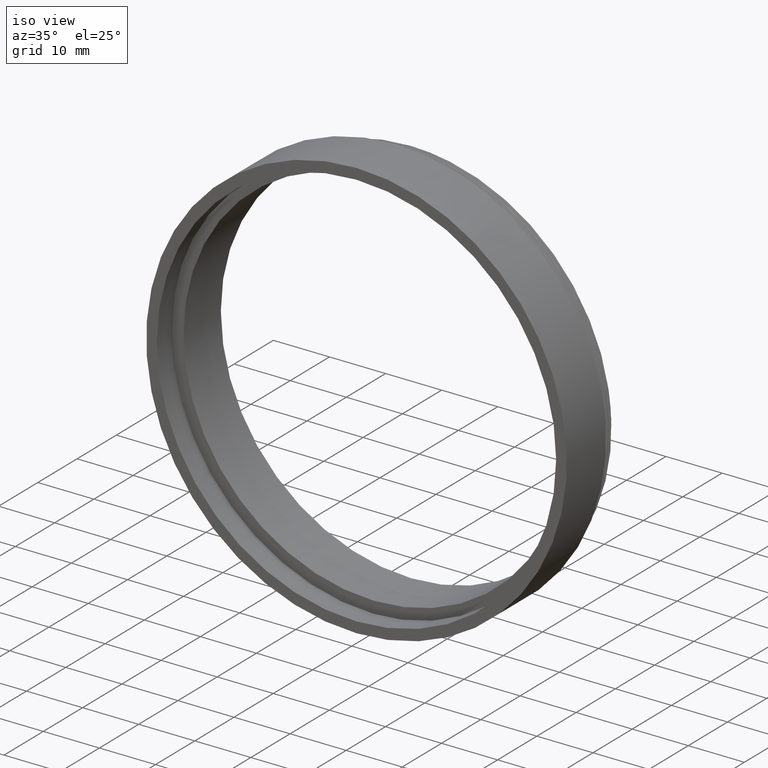
[diagram: clean part render]
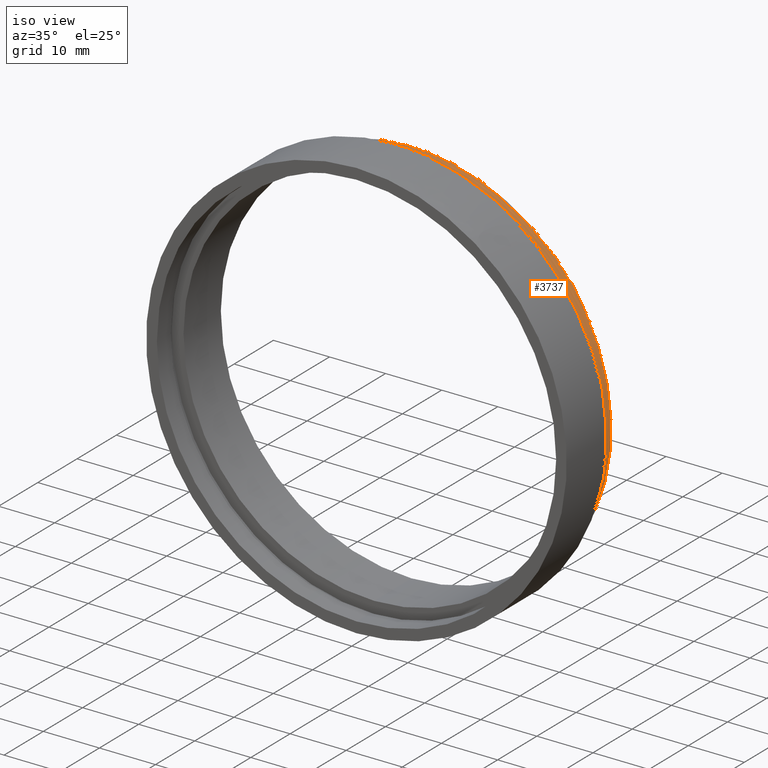
[diagram: same view with one face highlighted and labeled with its STEP entity id]
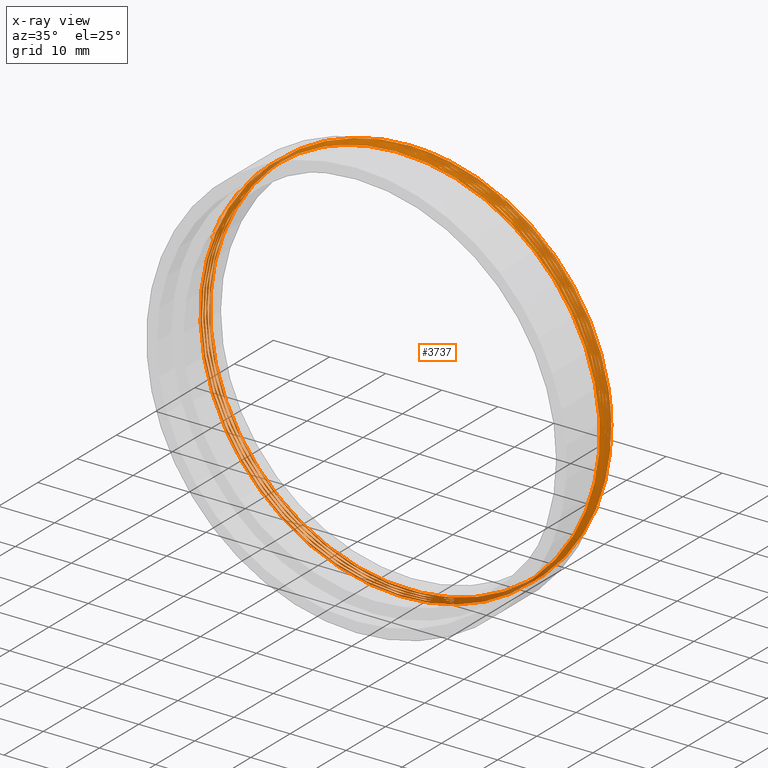
[diagram: x-ray of the same camera — body ghosted, the highlighted face saturated]
A machine part, iso view. The second image highlights one B-rep face of the part: STEP entity #3737.
The next image is the same camera in x-ray: the body ghosted, the highlighted face saturated — about 5% of this face is hidden behind the body in this view.
In plain terms, the highlighted face is a freeform B-spline surface patch.
Its self-contained STEP definition (entity closure, byte-faithful):
#10 = CARTESIAN_POINT ( 'NONE',  ( -17.81055694374999732, 13.22902519444426517, -30.84878953767367094 ) ) ;
#51 = CARTESIAN_POINT ( 'NONE',  ( -35.62111388750000174, 17.56875273844016405, 8.130287443242528056 ) ) ;
#71 = CARTESIAN_POINT ( 'NONE',  ( -17.99999999999999645, 13.44777519348834893, -31.17691453623979569 ) ) ;
#76 = CARTESIAN_POINT ( 'NONE',  ( 13.49453333647200992, 15.04382069095402663, 33.15921671177234487 ) ) ;
#92 = CARTESIAN_POINT ( 'NONE',  ( -17.81055694375002219, 12.76235852777759661, 30.84878953767366383 ) ) ;
#127 = CARTESIAN_POINT ( 'NONE',  ( -9.011938727428169926, 14.99729121369305140, 34.72707255685355676 ) ) ;
#154 = CARTESIAN_POINT ( 'NONE',  ( 2.545380572939776398E-15, 12.68944186015501607, -41.56921938165306329 ) ) ;
#211 = CARTESIAN_POINT ( 'NONE',  ( -18.37887332206767610, 14.97796245882133803, 30.75549887483602163 ) ) ;
#238 = CARTESIAN_POINT ( 'NONE',  ( -17.99999999999999645, 14.84777519348834751, -31.17691453623979569 ) ) ;
#266 = CARTESIAN_POINT ( 'NONE',  ( 35.99999999999999289, 13.15610852682168108, 20.78460969082654941 ) ) ;
#294 = CARTESIAN_POINT ( 'NONE',  ( -16.88435604723209593, 14.98104510103507714, 31.59714386954258458 ) ) ;
#318 = CARTESIAN_POINT ( 'NONE',  ( -18.00000000000001776, 16.48110852682168215, 31.17691453623978859 ) ) ;
#371 = CARTESIAN_POINT ( 'NONE',  ( -23.03597787820188358, 14.96740286554058663, 27.54249085092925853 ) ) ;
#397 = CARTESIAN_POINT ( 'NONE',  ( 17.99999999999997868, 17.29777519348834858, 31.17691453623980991 ) ) ;
#415 = CARTESIAN_POINT ( 'NONE',  ( 25.93189727267827394, 15.18082797456584387, -24.42131156235279832 ) ) ;
#447 = CARTESIAN_POINT ( 'NONE',  ( -6.122720106015310471, 14.80659807715227494, -35.48913869771926954 ) ) ;
#473 = CARTESIAN_POINT ( 'NONE',  ( -35.62111388750000174, 12.58735852777759590, -20.56585969178245676 ) ) ;
#508 = VERTEX_POINT ( 'NONE', #13339 ) ;
#554 = CARTESIAN_POINT ( 'NONE',  ( -36.00000000000001421, 15.72277519348834929, 20.78460969082651744 ) ) ;
#577 = CARTESIAN_POINT ( 'NONE',  ( 33.32324569364030964, 15.15224009232714941, -12.78581125046782141 ) ) ;
#621 = CARTESIAN_POINT ( 'NONE',  ( -3.857143447722851004, 14.80194186206893292, -35.79277084026449529 ) ) ;
#629 = CARTESIAN_POINT ( 'NONE',  ( 36.00000000000000000, 17.47277519348834574, -20.78460969082652454 ) ) ;
#677 = CARTESIAN_POINT ( 'NONE',  ( -36.00000000000000711, 12.86444186015501501, -4.408728476930471644E-15 ) ) ;
#709 = CARTESIAN_POINT ( 'NONE',  ( -7.555774272976482763E-15, 14.22069186111093053, 41.13171938356489221 ) ) ;
#803 = CARTESIAN_POINT ( 'NONE',  ( -7.555774272976482763E-15, 13.52069186111093124, 41.13171938356489221 ) ) ;
#829 = CARTESIAN_POINT ( 'NONE',  ( 34.38643360131052873, 15.14518812689515848, -9.472649439792698800 ) ) ;
#841 = CARTESIAN_POINT ( 'NONE',  ( -30.28715426310041892, 12.20194186206698816, 19.38964416466530238 ) ) ;
#889 = CARTESIAN_POINT ( 'NONE',  ( -35.62111388750001595, 13.40402519444426588, 20.56585969178243190 ) ) ;
#916 = CARTESIAN_POINT ( 'NONE',  ( 34.14182412137216005, 15.14695146553258986, -10.31347637788435101 ) ) ;
#926 = CARTESIAN_POINT ( 'NONE',  ( 18.08758032922786896, 12.20194186206698461, 30.74036715715338275 ) ) ;
#948 = CARTESIAN_POINT ( 'NONE',  ( 18.00000000000000711, 14.73110852682168215, -31.17691453623979214 ) ) ;
#952 = CARTESIAN_POINT ( 'NONE',  ( 36.00000000000000711, 12.57277519348834893, -20.78460969082652454 ) ) ;
#972 = CARTESIAN_POINT ( 'NONE',  ( -17.81055694375002219, 14.86235852777759803, 30.84878953767366383 ) ) ;
#1005 = CARTESIAN_POINT ( 'NONE',  ( -3.857143447722851004, 14.80194186206893292, -35.79277084026450240 ) ) ;
#1011 = CARTESIAN_POINT ( 'NONE',  ( -23.01945737712440376, 12.20194186206698461, 27.58035882311840581 ) ) ;
#1013 = CARTESIAN_POINT ( 'NONE',  ( 35.62111388750000884, 14.45402519444426481, -20.56585969178243545 ) ) ;
#1034 = CARTESIAN_POINT ( 'NONE',  ( -33.89009197315689903, 12.20194186206698639, 12.14337951523243575 ) ) ;
#1054 = CARTESIAN_POINT ( 'NONE',  ( -35.62111388750001595, 15.50402519444426552, 20.56585969178243190 ) ) ;
#1090 = CARTESIAN_POINT ( 'NONE',  ( 35.62111388749999463, 12.93735852777759732, 20.56585969178246742 ) ) ;
#1110 = CARTESIAN_POINT ( 'NONE',  ( 9.646170927520428151, 14.47070259927197711, 36.00000000000000000 ) ) ;
#1152 = CARTESIAN_POINT ( 'NONE',  ( 36.00000000000000000, 12.57277519348834893, -20.78460969082652454 ) ) ;
#1167 = CARTESIAN_POINT ( 'NONE',  ( 12.16609784321203946, 12.20194186206698994, 33.56347929532623908 ) ) ;
#1169 = CARTESIAN_POINT ( 'NONE',  ( -35.62111388750000174, 12.58735852777759590, -20.56585969178245676 ) ) ;
#1175 = VERTEX_POINT ( 'NONE', #14713 ) ;
#1200 = VERTEX_POINT ( 'NONE', #8219 ) ;
#1228 = CARTESIAN_POINT ( 'NONE',  ( 36.00000000000000000, 15.37277519348834787, -20.78460969082652454 ) ) ;
#1286 = CARTESIAN_POINT ( 'NONE',  ( -35.62111388750000884, 17.54569186111093160, -4.362328310439021147E-15 ) ) ;
#1307 = CARTESIAN_POINT ( 'NONE',  ( -17.99999999999999645, 12.74777519348834787, -31.17691453623979569 ) ) ;
#1310 =( BOUNDED_CURVE ( )  B_SPLINE_CURVE ( 2, ( #15348, #11524, #15268, #266, #10358, #6467, #12932, #14271, #5381 ),
 .UNSPECIFIED., .F., .T. ) 
 B_SPLINE_CURVE_WITH_KNOTS ( ( 3, 2, 2, 2, 3 ),
 ( 0.1944444444444444475, 0.2037037037037036924, 0.2222222222222222099, 0.2407407407407407274, 0.2500000000000000000 ),
 .UNSPECIFIED. ) 
 CURVE ( )  GEOMETRIC_REPRESENTATION_ITEM ( )  RATIONAL_B_SPLINE_CURVE ( ( 0.9330127018922192983, 0.9330127018922194093, 1.000000000000000000, 0.8660254037844387076, 1.000000000000000000, 0.8660254037844387076, 1.000000000000000000, 0.9330127018922191873, 0.9330127018922192983 ) ) 
 REPRESENTATION_ITEM ( '' )  );
#1324 = CARTESIAN_POINT ( 'NONE',  ( -17.81055694375002219, 13.46235852777759590, 30.84878953767366383 ) ) ;
#1359 = CARTESIAN_POINT ( 'NONE',  ( -18.79129852145276658, 14.83264510769622291, -30.69163323759250517 ) ) ;
#1382 = CARTESIAN_POINT ( 'NONE',  ( -36.00000000000000711, 14.26444186015501536, -4.408728476930471644E-15 ) ) ;
#1402 = CARTESIAN_POINT ( 'NONE',  ( -7.555774272976482763E-15, 14.92069186111092982, 41.13171938356488511 ) ) ;
#1439 = CARTESIAN_POINT ( 'NONE',  ( -26.28463879394141145, 14.95838692737881814, 24.37626185137227353 ) ) ;
#1463 = CARTESIAN_POINT ( 'NONE',  ( 2.545380572939776398E-15, 13.38944186015501536, -41.56921938165306329 ) ) ;
#1521 = CARTESIAN_POINT ( 'NONE',  ( -25.09282439434333511, 14.96179932045262539, 25.59661427204681061 ) ) ;
#1536 = ORIENTED_EDGE ( 'NONE', *, *, #8882, .T. ) ;
#1549 = CARTESIAN_POINT ( 'NONE',  ( 17.99999999999997868, 15.89777519348834645, 31.17691453623980991 ) ) ;
#1602 = CARTESIAN_POINT ( 'NONE',  ( -3.857143447722851004, 14.80194186206893292, -35.79277084026450240 ) ) ;
#1626 = CARTESIAN_POINT ( 'NONE',  ( 35.62111388749998753, 12.93735852777759732, 20.56585969178246742 ) ) ;
#1667 = CARTESIAN_POINT ( 'NONE',  ( 4.276323341209519156E-14, 14.43944186015501430, 36.00000000000000711 ) ) ;
#1681 = CARTESIAN_POINT ( 'NONE',  ( -34.56712248054629555, 14.92359074597200319, 9.677013457444727962 ) ) ;
#1705 = CARTESIAN_POINT ( 'NONE',  ( 17.81055694375000797, 11.71235852777759590, -30.84878953767366738 ) ) ;
#1724 = CARTESIAN_POINT ( 'NONE',  ( -35.62111388750001595, 14.80402519444426268, 20.56585969178243190 ) ) ;
#1749 = CARTESIAN_POINT ( 'NONE',  ( -17.99999999999999645, 12.74777519348834787, -31.17691453623979569 ) ) ;
#1783 = CARTESIAN_POINT ( 'NONE',  ( -36.00000000000000000, 17.78750273748424959, 8.216765732849264481 ) ) ;
#1808 = CARTESIAN_POINT ( 'NONE',  ( 34.90173197922518256, 15.11229957055366135, 7.654214014650047915 ) ) ;
#1850 =( BOUNDED_CURVE ( )  B_SPLINE_CURVE ( 2, ( #6083, #1110, #12211, #12541, #11131, #6160, #948, #4982, #14878 ),
 .UNSPECIFIED., .F., .T. ) 
 B_SPLINE_CURVE_WITH_KNOTS ( ( 3, 2, 2, 2, 3 ),
 ( 0.4166666666666666852, 0.4259259259259259300, 0.4444444444444444198, 0.4629629629629629650, 0.4722222222222222099 ),
 .UNSPECIFIED. ) 
 CURVE ( )  GEOMETRIC_REPRESENTATION_ITEM ( )  RATIONAL_B_SPLINE_CURVE ( ( 0.9330127018922194093, 0.9330127018922195203, 1.000000000000000000, 0.8660254037844387076, 1.000000000000000000, 0.8660254037844387076, 1.000000000000000000, 0.9330127018922194093, 0.9330127018922194093 ) ) 
 REPRESENTATION_ITEM ( '' )  );
#1863 = CARTESIAN_POINT ( 'NONE',  ( -36.00000000000001421, 16.42277519348834858, 20.78460969082651744 ) ) ;
#1873 = VERTEX_POINT ( 'NONE', #8327 ) ;
#1925 = CARTESIAN_POINT ( 'NONE',  ( 35.99999999999999289, 12.45610852682168179, 20.78460969082654941 ) ) ;
#1945 = CARTESIAN_POINT ( 'NONE',  ( 35.62111388750000884, 15.09569186111093053, 0.0000000000000000000 ) ) ;
#1950 =( BOUNDED_CURVE ( )  B_SPLINE_CURVE ( 2, ( #13111, #12035, #1749, #6809, #677, #11871, #7052, #12116, #5722 ),
 .UNSPECIFIED., .F., .T. ) 
 B_SPLINE_CURVE_WITH_KNOTS ( ( 3, 2, 2, 2, 3 ),
 ( 0.1388888888888888951, 0.1481481481481481399, 0.1666666666666666574, 0.1851851851851851749, 0.1944444444444444475 ),
 .UNSPECIFIED. ) 
 CURVE ( )  GEOMETRIC_REPRESENTATION_ITEM ( )  RATIONAL_B_SPLINE_CURVE ( ( 0.9330127018922192983, 0.9330127018922194093, 1.000000000000000000, 0.8660254037844387076, 1.000000000000000000, 0.8660254037844387076, 1.000000000000000000, 0.9330127018922191873, 0.9330127018922192983 ) ) 
 REPRESENTATION_ITEM ( '' )  );
#1974 = CARTESIAN_POINT ( 'NONE',  ( 24.34662656686873206, 15.06815731153197646, 26.17036315188012452 ) ) ;
#2032 = CARTESIAN_POINT ( 'NONE',  ( -17.81055694374999732, 15.32902519444426481, -30.84878953767367094 ) ) ;
#2060 = CARTESIAN_POINT ( 'NONE',  ( 34.23218300094706734, 15.10712445186935682, 10.14985059229293718 ) ) ;
#2072 = CARTESIAN_POINT ( 'NONE',  ( -0.7576835758775462004, 12.20194186206699172, 35.76558952241439471 ) ) ;
#2120 = CARTESIAN_POINT ( 'NONE',  ( -35.62111388750000174, 13.98735852777759803, -20.56585969178245676 ) ) ;
#2157 = CARTESIAN_POINT ( 'NONE',  ( 17.45474431505045843, 12.20194186206698816, 31.10804541114571009 ) ) ;
#2200 = CARTESIAN_POINT ( 'NONE',  ( 35.62111388750000884, 16.49569186111093089, 0.0000000000000000000 ) ) ;
#2234 = CARTESIAN_POINT ( 'NONE',  ( 7.224555174031883631, 12.20194186206698816, 35.01383966555207650 ) ) ;
#2236 = CARTESIAN_POINT ( 'NONE',  ( 35.62111388750000884, 12.35402519444426339, -20.56585969178243545 ) ) ;
#2283 = CARTESIAN_POINT ( 'NONE',  ( 2.518591424325494649E-15, 13.17069186111093160, -41.13171938356489221 ) ) ;
#2389 = CARTESIAN_POINT ( 'NONE',  ( -36.00000000000001421, 12.92277519348834680, 20.78460969082651744 ) ) ;
#2394 = CARTESIAN_POINT ( 'NONE',  ( 3.442451434952566558, 15.02302431517010284, 35.65541191575834290 ) ) ;
#2408 = CARTESIAN_POINT ( 'NONE',  ( 17.81055694375000797, 12.41235852777759696, -30.84878953767366738 ) ) ;
#2419 = CARTESIAN_POINT ( 'NONE',  ( -18.00000000000001776, 13.68110852682168144, 31.17691453623978859 ) ) ;
#2456 = VERTEX_POINT ( 'NONE', #9536 ) ;
#2469 = CARTESIAN_POINT ( 'NONE',  ( -18.00000000000001776, 15.08110852682168357, 31.17691453623978859 ) ) ;
#2475 = CARTESIAN_POINT ( 'NONE',  ( 18.88476099730680602, 15.05500071784641491, 30.36373459554946308 ) ) ;
#2476 = CARTESIAN_POINT ( 'NONE',  ( -17.99999999999999645, 14.14777519348834822, -31.17691453623979569 ) ) ;
#2486 = CARTESIAN_POINT ( 'NONE',  ( 35.62111388750000884, 12.29569186111092982, 0.0000000000000000000 ) ) ;
#2544 = CARTESIAN_POINT ( 'NONE',  ( -18.00000000000001776, 13.68110852682168144, 31.17691453623978859 ) ) ;
#2546 = VERTEX_POINT ( 'NONE', #3086 ) ;
#2560 = CARTESIAN_POINT ( 'NONE',  ( 18.00000000000000711, 14.03110852682168286, -31.17691453623979214 ) ) ;
#2563 = CARTESIAN_POINT ( 'NONE',  ( 23.98621856489820914, 12.20194186206698639, 26.33486422108871139 ) ) ;
#2603 = CARTESIAN_POINT ( 'NONE',  ( -15.36344545922231042, 14.98418263714580689, 32.37551173073568123 ) ) ;
#2625 = CARTESIAN_POINT ( 'NONE',  ( -36.00000000000000711, 13.56444186015501430, -4.408728476930471644E-15 ) ) ;
#2681 = CARTESIAN_POINT ( 'NONE',  ( -8.354573906991479504, 14.81118641866289565, -35.01231445076523840 ) ) ;
#2707 = CARTESIAN_POINT ( 'NONE',  ( -36.00000000000000000, 14.90610852682168286, -20.78460969082654231 ) ) ;
#2726 = CARTESIAN_POINT ( 'NONE',  ( 4.648177544792954952E-15, 14.08944186015501465, -36.00000000000000711 ) ) ;
#2763 = CARTESIAN_POINT ( 'NONE',  ( -34.37688556756899771, 14.88470863702901958, -10.46767142022062558 ) ) ;
#2788 = CARTESIAN_POINT ( 'NONE',  ( -17.81055694375002219, 12.06235852777759732, 30.84878953767366383 ) ) ;
#2844 = CARTESIAN_POINT ( 'NONE',  ( -35.38363068715283077, 14.91688525217569250, 6.390135852520292481 ) ) ;
#2874 = CARTESIAN_POINT ( 'NONE',  ( 36.00000000000000711, 16.71444186015501288, 0.0000000000000000000 ) ) ;
#2932 = CARTESIAN_POINT ( 'NONE',  ( -18.86563223376075626, 14.97693250567250267, 30.46048852629522941 ) ) ;
#2958 = CARTESIAN_POINT ( 'NONE',  ( -18.00000000000001776, 15.78110852682168286, 31.17691453623978859 ) ) ;
#2992 = CARTESIAN_POINT ( 'NONE',  ( 1.487416814333745711E-14, 13.03944186015501572, 36.00000000000001421 ) ) ;
#3036 = CARTESIAN_POINT ( 'NONE',  ( 36.00000000000000000, 16.07277519348834716, -20.78460969082652454 ) ) ;
#3086 = CARTESIAN_POINT ( 'NONE',  ( 4.648177544792954952E-15, 14.78944186015501394, -36.00000000000000711 ) ) ;
#3097 = B_SPLINE_CURVE_WITH_KNOTS ( 'NONE', 3,
 ( #7032, #5621, #5700, #3309, #4466, #14755, #577, #916, #829, #6871, #5963, #14842, #16091, #12178, #8517, #14590, #4714, #13428, #1808, #2060, #10931, #5879, #9601, #11933, #10759, #3223, #16007, #10680, #14512, #3139, #12096, #15835, #1974, #5035, #6047, #2475, #15008, #11178, #12591, #76, #15170, #15094, #8845, #3883, #3640, #2394, #9858, #7283 ),
 .UNSPECIFIED., .F., .F.,
 ( 4, 2, 2, 2, 2, 2, 2, 2, 2, 2, 2, 2, 2, 2, 2, 2, 2, 2, 2, 2, 2, 2, 2, 4 ),
 ( 0.0000000000000000000, 0.005237522838320980874, 0.01047504567664196175, 0.01571256851496295043, 0.01833132993412344217, 0.02095009135328393737, 0.02618761419160492432, 0.02880637561076541606, 0.03142513702992590779, 0.03666265986824688433, 0.03928142128740737260, 0.04059080199698761326, 0.04190018270656785393, 0.04713770554488882353, 0.05237522838320978619, 0.05499398980237025364, 0.05761275122153072803, 0.06285027405985167681, 0.06546903547901214426, 0.06808779689817262559, 0.07332531973649356050, 0.07594408115565401407, 0.07856284257481448152, 0.08380036541313541643 ),
 .UNSPECIFIED. ) ;
#3115 = CARTESIAN_POINT ( 'NONE',  ( 35.62111388750000884, 11.59569186111093053, 0.0000000000000000000 ) ) ;
#3139 = CARTESIAN_POINT ( 'NONE',  ( 26.76691040753755146, 15.07512521241366876, 23.67895265537199379 ) ) ;
#3176 = CARTESIAN_POINT ( 'NONE',  ( 18.00000000000000711, 12.63110852682168250, -31.17691453623979214 ) ) ;
#3196 = CARTESIAN_POINT ( 'NONE',  ( -17.81055694375002219, 13.46235852777759590, 30.84878953767366383 ) ) ;
#3223 = CARTESIAN_POINT ( 'NONE',  ( 32.05747928038937289, 15.09468941215238402, 15.82271410378680443 ) ) ;
#3283 = CARTESIAN_POINT ( 'NONE',  ( 35.62111388750000884, 13.69569186111093018, 0.0000000000000000000 ) ) ;
#3309 = CARTESIAN_POINT ( 'NONE',  ( 30.23559428297194884, 15.16650227740325185, -18.94023368143248831 ) ) ;
#3322 = CARTESIAN_POINT ( 'NONE',  ( -26.72991685379122728, 12.20194186206698639, 24.00925725630118990 ) ) ;
#3369 = CARTESIAN_POINT ( 'NONE',  ( 17.81055694374997955, 16.37902519444426375, 30.84878953767368159 ) ) ;
#3407 = CARTESIAN_POINT ( 'NONE',  ( -25.20136900884943998, 12.20194186206698994, 25.59230179576966435 ) ) ;
#3448 = CARTESIAN_POINT ( 'NONE',  ( 35.62111388750000884, 15.79569186111092982, 0.0000000000000000000 ) ) ;
#3464 = EDGE_CURVE ( 'NONE', #5463, #6523, #9244, .T. ) ;
#3486 = CARTESIAN_POINT ( 'NONE',  ( -24.66602517752109236, 12.20194186206698639, 26.10323679146283382 ) ) ;
#3487 = CARTESIAN_POINT ( 'NONE',  ( -35.62111388750001595, 13.40402519444426588, 20.56585969178243190 ) ) ;
#3534 = CARTESIAN_POINT ( 'NONE',  ( 17.81055694375000797, 13.11235852777759625, -30.84878953767366738 ) ) ;
#3571 = CARTESIAN_POINT ( 'NONE',  ( -7.555774272976482763E-15, 13.52069186111093124, 41.13171938356488511 ) ) ;
#3640 = CARTESIAN_POINT ( 'NONE',  ( 6.024489934113367973, 15.02836413979730246, 35.27338042446755395 ) ) ;
#3642 = CARTESIAN_POINT ( 'NONE',  ( -9.646170927520405058, 14.40818112103805149, 36.00000000000001421 ) ) ;
#3653 = CARTESIAN_POINT ( 'NONE',  ( -35.62111388750000174, 14.68735852777759732, -20.56585969178245676 ) ) ;
#3723 = CARTESIAN_POINT ( 'NONE',  ( 17.99999999999997868, 14.49777519348834787, 31.17691453623980991 ) ) ;
#3737 = ADVANCED_FACE ( 'NONE', ( #7111 ), #12641, .T. ) ;
#3751 = CARTESIAN_POINT ( 'NONE',  ( -2.510015874188196163E-14, 13.38944186015501714, -36.00000000000001421 ) ) ;
#3804 = CARTESIAN_POINT ( 'NONE',  ( 2.545380572939776398E-15, 11.98944186015501501, -41.56921938165306329 ) ) ;
#3821 = CARTESIAN_POINT ( 'NONE',  ( 2.518591424325494649E-15, 13.17069186111093337, -41.13171938356488511 ) ) ;
#3847 = EDGE_LOOP ( 'NONE', ( #8246, #1536, #10521, #6466, #12288, #5075, #4083, #6836, #9003, #7967, #6332, #9563, #7081 ) ) ;
#3853 = CARTESIAN_POINT ( 'NONE',  ( -21.25710678146598909, 14.97172714892628420, 28.93257722603150128 ) ) ;
#3878 = CARTESIAN_POINT ( 'NONE',  ( -18.00000000000001776, 12.98110852682168215, 31.17691453623978859 ) ) ;
#3883 = CARTESIAN_POINT ( 'NONE',  ( 6.884123068377477672, 15.03014218577755123, 35.11383405893683118 ) ) ;
#3907 = CARTESIAN_POINT ( 'NONE',  ( -17.99999999999999645, 13.44777519348834893, -31.17691453623979569 ) ) ;
#3932 = CARTESIAN_POINT ( 'NONE',  ( -21.61159909365256837, 14.83899635238475412, -28.75061694333925288 ) ) ;
#3950 = CARTESIAN_POINT ( 'NONE',  ( 1.487416814333745711E-14, 12.33944186015501465, 36.00000000000001421 ) ) ;
#3956 = CARTESIAN_POINT ( 'NONE',  ( 17.99999999999997868, 15.19777519348834893, 31.17691453623980991 ) ) ;
#3986 = EDGE_CURVE ( 'NONE', #1175, #508, #15498, .T. ) ;
#4011 = CARTESIAN_POINT ( 'NONE',  ( -4.514425151620688581, 15.00658012434962174, 35.51411887633589970 ) ) ;
#4035 = CARTESIAN_POINT ( 'NONE',  ( 2.545380572939776398E-15, 14.08944186015501643, -41.56921938165306329 ) ) ;
#4083 = ORIENTED_EDGE ( 'NONE', *, *, #6939, .F. ) ;
#4090 = CARTESIAN_POINT ( 'NONE',  ( -25.88836082086267965, 14.84998066437191078, -25.04934015741401865 ) ) ;
#4114 = CARTESIAN_POINT ( 'NONE',  ( -17.81055694374999732, 12.52902519444426410, -30.84878953767367094 ) ) ;
#4158 =( BOUNDED_CURVE ( )  B_SPLINE_CURVE ( 2, ( #10966, #13777, #12519, #15180, #4960, #7615, #2560, #5045, #2726 ),
 .UNSPECIFIED., .F., .F. ) 
 B_SPLINE_CURVE_WITH_KNOTS ( ( 3, 2, 2, 2, 3 ),
 ( 0.3055555555555555802, 0.3148148148148148251, 0.3333333333333333148, 0.3518518518518518601, 0.3611111111111111049 ),
 .UNSPECIFIED. ) 
 CURVE ( )  GEOMETRIC_REPRESENTATION_ITEM ( )  RATIONAL_B_SPLINE_CURVE ( ( 0.9330127018922194093, 0.9330127018922195203, 1.000000000000000000, 0.8660254037844387076, 1.000000000000000000, 0.8660254037844387076, 1.000000000000000000, 0.9330127018922194093, 0.9330127018922194093 ) ) 
 REPRESENTATION_ITEM ( '' )  );
#4172 = CARTESIAN_POINT ( 'NONE',  ( -31.62269968599742143, 14.93981730503445426, 17.06671638640624167 ) ) ;
#4199 = CARTESIAN_POINT ( 'NONE',  ( -17.99999999999999645, 17.64777519348834645, -31.17691453623979569 ) ) ;
#4278 = CARTESIAN_POINT ( 'NONE',  ( -35.62111388750000884, 12.64569186111093124, -4.362328310439021147E-15 ) ) ;
#4355 = CARTESIAN_POINT ( 'NONE',  ( -7.636141718819330773E-15, 16.53944186015501572, 41.56921938165306329 ) ) ;
#4439 = CARTESIAN_POINT ( 'NONE',  ( 17.81055694375000797, 15.91235852777759696, -30.84878953767366738 ) ) ;
#4466 = CARTESIAN_POINT ( 'NONE',  ( 31.11913924935399578, 15.16291705995680417, -17.45572700782050291 ) ) ;
#4506 = CARTESIAN_POINT ( 'NONE',  ( 9.646170927520415717, 12.37070259927197746, 36.00000000000000711 ) ) ;
#4524 = CARTESIAN_POINT ( 'NONE',  ( 35.62111388749998753, 14.33735852777759767, 20.56585969178246742 ) ) ;
#4564 = CARTESIAN_POINT ( 'NONE',  ( -31.78319009460700428, 12.20194186206698994, 16.86116872839452441 ) ) ;
#4602 = CARTESIAN_POINT ( 'NONE',  ( -36.00000000000001421, 13.62277519348834964, 20.78460969082651744 ) ) ;
#4610 = CARTESIAN_POINT ( 'NONE',  ( -35.62111388750001595, 16.20402519444426304, 20.56585969178243190 ) ) ;
#4669 = CARTESIAN_POINT ( 'NONE',  ( 36.00000000000000711, 12.51444186015501359, 0.0000000000000000000 ) ) ;
#4689 = CARTESIAN_POINT ( 'NONE',  ( -35.62111388750000884, 15.44569186111093018, -4.362328310439021147E-15 ) ) ;
#4714 = CARTESIAN_POINT ( 'NONE',  ( 35.53098959817413771, 15.12062228401396524, 3.384433161545484126 ) ) ;
#4769 = CARTESIAN_POINT ( 'NONE',  ( -35.62111388750000174, 16.08735852777759590, -20.56585969178245676 ) ) ;
#4805 = CARTESIAN_POINT ( 'NONE',  ( 22.89833323136178578, 12.20194186206697751, 27.33653918206077904 ) ) ;
#4806 = CARTESIAN_POINT ( 'NONE',  ( -17.81055694374999732, 12.52902519444426410, -30.84878953767367094 ) ) ;
#4880 = CARTESIAN_POINT ( 'NONE',  ( -19.47959777053348063, 12.20194186206698639, 30.15705386959546530 ) ) ;
#4882 = CARTESIAN_POINT ( 'NONE',  ( -35.62111388750001595, 14.10402519444426339, 20.56585969178243190 ) ) ;
#4893 = EDGE_CURVE ( 'NONE', #1873, #5425, #4158, .T. ) ;
#4894 = CARTESIAN_POINT ( 'NONE',  ( -36.00000000000000711, 13.56444186015501430, -4.408728476930471644E-15 ) ) ;
#4943 = CARTESIAN_POINT ( 'NONE',  ( -18.00000000000001776, 14.38110852682168250, 31.17691453623978859 ) ) ;
#4960 = CARTESIAN_POINT ( 'NONE',  ( 36.00000000000000711, 13.91444186015501394, 0.0000000000000000000 ) ) ;
#4962 = CARTESIAN_POINT ( 'NONE',  ( 35.62111388750000884, 12.99569186111093089, 0.0000000000000000000 ) ) ;
#4982 = CARTESIAN_POINT ( 'NONE',  ( 9.646170927520424598, 14.75818112103805113, -36.00000000000000000 ) ) ;
#5007 = CARTESIAN_POINT ( 'NONE',  ( 35.62111388749998753, 17.13735852777759661, 20.56585969178246742 ) ) ;
#5028 = CARTESIAN_POINT ( 'NONE',  ( -36.00000000000001421, 12.22277519348834929, 20.78460969082651744 ) ) ;
#5035 = CARTESIAN_POINT ( 'NONE',  ( 22.41506590955748734, 15.06308093227116274, 27.88910357764733661 ) ) ;
#5045 = CARTESIAN_POINT ( 'NONE',  ( 9.646170927520424598, 14.05818112103805007, -36.00000000000000000 ) ) ;
#5075 = ORIENTED_EDGE ( 'NONE', *, *, #12548, .F. ) ;
#5108 = CARTESIAN_POINT ( 'NONE',  ( -36.00000000000001421, 13.62277519348834787, 20.78460969082651744 ) ) ;
#5163 = CARTESIAN_POINT ( 'NONE',  ( -17.38810331481707294, 14.98000599647369313, 31.32397081495909319 ) ) ;
#5189 = CARTESIAN_POINT ( 'NONE',  ( 2.545380572939776398E-15, 14.78944186015501572, -41.56921938165306329 ) ) ;
#5248 = CARTESIAN_POINT ( 'NONE',  ( -27.79923278449245316, 14.95376050097623910, 22.66277649185289889 ) ) ;
#5275 = CARTESIAN_POINT ( 'NONE',  ( -17.99999999999999645, 15.54777519348834858, -31.17691453623979569 ) ) ;
#5300 = CARTESIAN_POINT ( 'NONE',  ( 17.81055694374997955, 14.97902519444426517, 30.84878953767368159 ) ) ;
#5334 = CARTESIAN_POINT ( 'NONE',  ( -30.48347453970872323, 14.94447523119332999, 19.01662679235067088 ) ) ;
#5357 = CARTESIAN_POINT ( 'NONE',  ( 2.518591424325494649E-15, 11.77069186111093124, -41.13171938356489221 ) ) ;
#5368 = B_SPLINE_CURVE_WITH_KNOTS ( 'NONE', 3,
 ( #10074, #15143, #10308, #11472, #4011, #15376, #15216, #127, #5493, #9057, #2603, #294, #5163, #211, #2932, #3853, #371, #1521, #10468, #1439, #13041, #5248, #14136, #5334, #4172, #9217, #8895, #11551, #1681, #2844, #14217, #5410, #15538, #6579, #10222, #13968, #2763, #7655, #7809, #7971, #14301, #12878, #12726, #15296, #6742, #4090, #11804, #11639, #3932, #10386, #15458, #1359, #8977, #6419, #9140, #14056, #7889, #2681, #12959, #447, #7730, #1602 ),
 .UNSPECIFIED., .F., .F.,
 ( 4, 2, 2, 2, 2, 2, 2, 2, 2, 2, 2, 2, 2, 2, 2, 2, 2, 2, 2, 2, 2, 2, 2, 2, 2, 2, 2, 2, 2, 2, 4 ),
 ( 0.08380036541313541643, 0.08723484213106702523, 0.08895208049003283657, 0.09066931884899863403, 0.09753827228486186551, 0.1009727490027934882, 0.1026899873617592995, 0.1044072257207250831, 0.1112761791565882730, 0.1129934175155540704, 0.1147106558745198679, 0.1181451325924514628, 0.1250140860283146527, 0.1284485627462462198, 0.1318830394641778148, 0.1387519929000410046, 0.1456209463359041945, 0.1490554230538357616, 0.1524898997717673566, 0.1593588532076305186, 0.1627933299255621136, 0.1645105682845279249, 0.1662278066434937362, 0.1730967600793569539, 0.1748139984383227652, 0.1765312367972885488, 0.1799657135152201715, 0.1868346669510833891, 0.1885519053100492004, 0.1902691436690150117, 0.1937036203869466067 ),
 .UNSPECIFIED. ) ;
#5376 = CARTESIAN_POINT ( 'NONE',  ( 35.62111388750000884, 15.09569186111093053, 0.0000000000000000000 ) ) ;
#5381 = CARTESIAN_POINT ( 'NONE',  ( -2.510015874188196163E-14, 13.38944186015501714, -36.00000000000001421 ) ) ;
#5410 = CARTESIAN_POINT ( 'NONE',  ( -35.96827918592263273, 14.90414104557181929, -0.4195287272650960464 ) ) ;
#5425 = VERTEX_POINT ( 'NONE', #11133 ) ;
#5434 = CARTESIAN_POINT ( 'NONE',  ( 35.62111388749998753, 12.23735852777759803, 20.56585969178246742 ) ) ;
#5463 = VERTEX_POINT ( 'NONE', #1034 ) ;
#5493 = CARTESIAN_POINT ( 'NONE',  ( -11.18191783570200393, 14.99281152893150981, 34.09343171819929097 ) ) ;
#5520 = CARTESIAN_POINT ( 'NONE',  ( 36.00000000000000711, 16.01444186015501359, 0.0000000000000000000 ) ) ;
#5595 = CARTESIAN_POINT ( 'NONE',  ( -36.00000000000000000, 16.30610852682168499, -20.78460969082654231 ) ) ;
#5621 = CARTESIAN_POINT ( 'NONE',  ( 27.13149668832884842, 15.17729955282265664, -23.15265723872429504 ) ) ;
#5673 = CARTESIAN_POINT ( 'NONE',  ( -36.00000000000000000, 17.70610852682168002, -20.78460969082654231 ) ) ;
#5700 = CARTESIAN_POINT ( 'NONE',  ( 28.23661208857532756, 15.17371356528048665, -21.79686785955253114 ) ) ;
#5722 = CARTESIAN_POINT ( 'NONE',  ( 1.487416814333745711E-14, 13.03944186015501572, 36.00000000000001421 ) ) ;
#5759 = CARTESIAN_POINT ( 'NONE',  ( 35.62111388750000884, 14.39569186111093124, 0.0000000000000000000 ) ) ;
#5852 = CARTESIAN_POINT ( 'NONE',  ( 17.81055694374997955, 14.27902519444426410, 30.84878953767368159 ) ) ;
#5879 = CARTESIAN_POINT ( 'NONE',  ( 33.55199441126898563, 15.10273594884844606, 12.20182254266236477 ) ) ;
#5888 = CARTESIAN_POINT ( 'NONE',  ( -21.87173972347918749, 12.20194186206698639, 28.48858556876338000 ) ) ;
#5934 = CARTESIAN_POINT ( 'NONE',  ( 35.62111388749998753, 13.63735852777759838, 20.56585969178246742 ) ) ;
#5963 = CARTESIAN_POINT ( 'NONE',  ( 34.99014262229633232, 15.14002120170953525, -6.943040021469849776 ) ) ;
#5973 = CARTESIAN_POINT ( 'NONE',  ( 19.94884064449485095, 12.20194186206698994, 29.55319569362070453 ) ) ;
#6019 = CARTESIAN_POINT ( 'NONE',  ( 17.81055694375000797, 16.61235852777759803, -30.84878953767366738 ) ) ;
#6047 = CARTESIAN_POINT ( 'NONE',  ( 21.04983468687162329, 15.05979155810473280, 28.93774126276073133 ) ) ;
#6059 = CARTESIAN_POINT ( 'NONE',  ( -3.701648829936367235, 12.20194186206699172, 35.59834074094184331 ) ) ;
#6083 = CARTESIAN_POINT ( 'NONE',  ( 4.276323341209519156E-14, 14.43944186015501607, 36.00000000000000711 ) ) ;
#6105 = CARTESIAN_POINT ( 'NONE',  ( -35.62111388750000884, 14.04569186111093160, -4.362328310439021147E-15 ) ) ;
#6140 = CARTESIAN_POINT ( 'NONE',  ( -18.23525318028794473, 12.20194186206698461, 30.91741739943691414 ) ) ;
#6141 = CARTESIAN_POINT ( 'NONE',  ( 35.62111388750000884, 13.05402519444426446, -20.56585969178243545 ) ) ;
#6160 = CARTESIAN_POINT ( 'NONE',  ( 36.00000000000000711, 14.67277519348834858, -20.78460969082652454 ) ) ;
#6182 = CARTESIAN_POINT ( 'NONE',  ( 2.518591424325494649E-15, 17.37069186111092733, -41.13171938356489221 ) ) ;
#6202 = CARTESIAN_POINT ( 'NONE',  ( -36.00000000000001421, 15.02277519348834822, 20.78460969082651744 ) ) ;
#6219 = CARTESIAN_POINT ( 'NONE',  ( -29.05883571756384498, 12.20194186206698639, 21.20306422335801244 ) ) ;
#6220 = CARTESIAN_POINT ( 'NONE',  ( -17.81055694374999732, 14.62902519444426375, -30.84878953767367094 ) ) ;
#6231 = CARTESIAN_POINT ( 'NONE',  ( -9.646170927520405058, 13.70818112103804864, 36.00000000000001421 ) ) ;
#6262 = CARTESIAN_POINT ( 'NONE',  ( -17.81055694375002219, 16.96235852777759590, 30.84878953767366383 ) ) ;
#6281 = CARTESIAN_POINT ( 'NONE',  ( 36.00000000000000000, 14.67277519348835035, -20.78460969082652454 ) ) ;
#6332 = ORIENTED_EDGE ( 'NONE', *, *, #8102, .F. ) ;
#6364 = CARTESIAN_POINT ( 'NONE',  ( -36.00000000000000711, 12.86444186015501501, -4.408728476930471644E-15 ) ) ;
#6419 = CARTESIAN_POINT ( 'NONE',  ( -14.82305610394420725, 14.82449046677560212, -32.85969863240936206 ) ) ;
#6443 = CARTESIAN_POINT ( 'NONE',  ( 35.99999999999999289, 14.55610852682168144, 20.78460969082654586 ) ) ;
#6466 = ORIENTED_EDGE ( 'NONE', *, *, #16281, .T. ) ;
#6467 = CARTESIAN_POINT ( 'NONE',  ( 36.00000000000000711, 13.27277519348835000, -20.78460969082652454 ) ) ;
#6469 = CARTESIAN_POINT ( 'NONE',  ( -36.00000000000000000, 13.50610852682167895, -20.78460969082654231 ) ) ;
#6522 = CARTESIAN_POINT ( 'NONE',  ( -17.99999999999999645, 12.04777519348834858, -31.17691453623979569 ) ) ;
#6523 = VERTEX_POINT ( 'NONE', #7547 ) ;
#6579 = CARTESIAN_POINT ( 'NONE',  ( -35.41502916890715369, 14.89368446630431464, -6.037641204153126218 ) ) ;
#6606 = CARTESIAN_POINT ( 'NONE',  ( -17.81055694375002219, 12.76235852777759661, 30.84878953767366383 ) ) ;
#6666 = EDGE_CURVE ( 'NONE', #12799, #1200, #1310, .T. ) ;
#6689 = CARTESIAN_POINT ( 'NONE',  ( 35.62111388750000884, 12.99569186111093089, 0.0000000000000000000 ) ) ;
#6742 = CARTESIAN_POINT ( 'NONE',  ( -27.72140982541619536, 14.85571112128610949, -22.89051689909713616 ) ) ;
#6766 = CARTESIAN_POINT ( 'NONE',  ( 17.81055694374997955, 12.17902519444426446, 30.84878953767368159 ) ) ;
#6809 = CARTESIAN_POINT ( 'NONE',  ( -36.00000000000000000, 12.80610852682168144, -20.78460969082654231 ) ) ;
#6836 = ORIENTED_EDGE ( 'NONE', *, *, #4893, .F. ) ;
#6837 = CARTESIAN_POINT ( 'NONE',  ( 4.648177544792954952E-15, 14.78944186015501394, -36.00000000000000711 ) ) ;
#6846 = CARTESIAN_POINT ( 'NONE',  ( -17.81055694374999732, 11.82902519444426481, -30.84878953767367094 ) ) ;
#6871 = CARTESIAN_POINT ( 'NONE',  ( 34.81007789514220718, 15.14172574580757846, -7.788665270013343189 ) ) ;
#6925 = CARTESIAN_POINT ( 'NONE',  ( 35.99999999999999289, 16.65610852682168286, 20.78460969082654586 ) ) ;
#6939 = EDGE_CURVE ( 'NONE', #5425, #10656, #14880, .T. ) ;
#7005 = CARTESIAN_POINT ( 'NONE',  ( -17.81055694375002219, 15.56235852777759732, 30.84878953767366383 ) ) ;
#7032 = CARTESIAN_POINT ( 'NONE',  ( 25.93189727267827749, 15.18082797456584387, -24.42131156235279832 ) ) ;
#7052 = CARTESIAN_POINT ( 'NONE',  ( -18.00000000000001776, 12.98110852682168215, 31.17691453623978859 ) ) ;
#7081 = ORIENTED_EDGE ( 'NONE', *, *, #9815, .F. ) ;
#7089 = CARTESIAN_POINT ( 'NONE',  ( -35.62111388750000174, 15.38735852777759838, -20.56585969178245676 ) ) ;
#7111 = FACE_OUTER_BOUND ( 'NONE', #3847, .T. ) ;
#7130 = CARTESIAN_POINT ( 'NONE',  ( -14.29259197448779695, 12.20194186206698816, 32.87772594039717688 ) ) ;
#7177 = CARTESIAN_POINT ( 'NONE',  ( 17.81055694375000797, 13.81235852777759732, -30.84878953767366738 ) ) ;
#7203 = CARTESIAN_POINT ( 'NONE',  ( -18.00000000000001776, 14.38110852682168250, 31.17691453623978859 ) ) ;
#7211 = CARTESIAN_POINT ( 'NONE',  ( 19.33392436993732844, 12.20194186206698461, 29.96343993546128814 ) ) ;
#7257 = CARTESIAN_POINT ( 'NONE',  ( 35.62111388750000884, 16.55402519444426446, -20.56585969178244255 ) ) ;
#7283 = CARTESIAN_POINT ( 'NONE',  ( -1.487416814333745711E-14, 15.01590828707752046, 35.78603357498927551 ) ) ;
#7294 = CARTESIAN_POINT ( 'NONE',  ( 14.20581283855147703, 12.20194186206698994, 32.76415301642241928 ) ) ;
#7295 = CARTESIAN_POINT ( 'NONE',  ( 35.62111388750000884, 14.39569186111093124, 0.0000000000000000000 ) ) ;
#7339 = CARTESIAN_POINT ( 'NONE',  ( -35.62111388750000884, 14.74569186111093089, -4.362328310439021147E-15 ) ) ;
#7375 = CARTESIAN_POINT ( 'NONE',  ( -13.60943530241956090, 12.20194186206698639, 33.16212137602626342 ) ) ;
#7376 = CARTESIAN_POINT ( 'NONE',  ( 2.518591424325494649E-15, 13.87069186111093089, -41.13171938356488511 ) ) ;
#7439 = CARTESIAN_POINT ( 'NONE',  ( -36.00000000000001421, 14.32277519348834716, 20.78460969082651744 ) ) ;
#7455 = CARTESIAN_POINT ( 'NONE',  ( -15.63595998157663658, 12.20194186206698284, 32.26889283643335204 ) ) ;
#7456 = CARTESIAN_POINT ( 'NONE',  ( -17.81055694374999732, 13.92902519444426446, -30.84878953767367094 ) ) ;
#7500 = CARTESIAN_POINT ( 'NONE',  ( 17.81055694374997955, 17.07902519444426304, 30.84878953767368159 ) ) ;
#7524 = CARTESIAN_POINT ( 'NONE',  ( 35.99999999999999289, 13.15610852682168108, 20.78460969082654586 ) ) ;
#7540 = CARTESIAN_POINT ( 'NONE',  ( -35.62111388750000174, 13.98735852777759803, -20.56585969178245676 ) ) ;
#7547 = CARTESIAN_POINT ( 'NONE',  ( 23.98621856489820914, 12.20194186206698639, 26.33486422108871139 ) ) ;
#7597 = CARTESIAN_POINT ( 'NONE',  ( 36.00000000000000711, 13.21444186015501465, 0.0000000000000000000 ) ) ;
#7615 = CARTESIAN_POINT ( 'NONE',  ( 36.00000000000000711, 13.97277519348834751, -20.78460969082652454 ) ) ;
#7655 = CARTESIAN_POINT ( 'NONE',  ( -33.28614339207796036, 14.87781452548382610, -13.70235884654999481 ) ) ;
#7659 = CARTESIAN_POINT ( 'NONE',  ( 17.81055694375000797, 17.31235852777760087, -30.84878953767366738 ) ) ;
#7679 = CARTESIAN_POINT ( 'NONE',  ( -7.636141718819330773E-15, 13.03944186015501572, 41.56921938165306329 ) ) ;
#7730 = CARTESIAN_POINT ( 'NONE',  ( -4.995155570682901391, 14.80428047660552870, -35.66778286024806022 ) ) ;
#7755 = CARTESIAN_POINT ( 'NONE',  ( 2.545380572939776398E-15, 15.48944186015501501, -41.56921938165306329 ) ) ;
#7809 = CARTESIAN_POINT ( 'NONE',  ( -32.36473107076110267, 14.87318870966030993, -15.76432702153996601 ) ) ;
#7836 = CARTESIAN_POINT ( 'NONE',  ( 36.00000000000000711, 17.41444186015501572, 0.0000000000000000000 ) ) ;
#7855 = CARTESIAN_POINT ( 'NONE',  ( 35.62111388750002305, 15.13577826540339366, -14.13276627817487885 ) ) ;
#7889 = CARTESIAN_POINT ( 'NONE',  ( -9.461408846007397955, 14.81346227711217800, -34.72720830221066279 ) ) ;
#7911 = CARTESIAN_POINT ( 'NONE',  ( -29.43584202894547630, 12.24404792765380456, 24.57442806241808242 ) ) ;
#7918 = CARTESIAN_POINT ( 'NONE',  ( 17.81055694375000797, 12.41235852777759696, -30.84878953767366738 ) ) ;
#7967 = ORIENTED_EDGE ( 'NONE', *, *, #6666, .F. ) ;
#7971 = CARTESIAN_POINT ( 'NONE',  ( -30.69666539005063299, 14.86620635624165487, -18.71818501980039429 ) ) ;
#7997 = CARTESIAN_POINT ( 'NONE',  ( -36.00000000000001421, 17.12277519348835142, 20.78460969082651744 ) ) ;
#8076 = CARTESIAN_POINT ( 'NONE',  ( 2.545380572939776398E-15, 16.88944186015501359, -41.56921938165306329 ) ) ;
#8102 = EDGE_CURVE ( 'NONE', #508, #12799, #1950, .T. ) ;
#8155 = CARTESIAN_POINT ( 'NONE',  ( 2.545380572939776398E-15, 16.18944186015501785, -41.56921938165306329 ) ) ;
#8219 = CARTESIAN_POINT ( 'NONE',  ( -2.510015874188196163E-14, 13.38944186015501714, -36.00000000000001421 ) ) ;
#8236 = CARTESIAN_POINT ( 'NONE',  ( 35.62111388750000884, 13.75402519444426552, -20.56585969178244255 ) ) ;
#8246 = ORIENTED_EDGE ( 'NONE', *, *, #3464, .T. ) ;
#8320 = CARTESIAN_POINT ( 'NONE',  ( -17.81055694375002219, 14.16235852777759696, 30.84878953767366383 ) ) ;
#8327 = CARTESIAN_POINT ( 'NONE',  ( 4.276323341209519156E-14, 13.73944186015501323, 36.00000000000000711 ) ) ;
#8341 = CARTESIAN_POINT ( 'NONE',  ( 36.00000000000000000, 11.87277519348834787, -20.78460969082652454 ) ) ;
#8357 = CARTESIAN_POINT ( 'NONE',  ( -5.888833424614890788, 12.20194186206698994, 35.33788668452827153 ) ) ;
#8406 = CARTESIAN_POINT ( 'NONE',  ( 35.62111388750000884, 15.85402519444426339, -20.56585969178244255 ) ) ;
#8438 = CARTESIAN_POINT ( 'NONE',  ( -36.00000000000000000, 14.20610852682168002, -20.78460969082654231 ) ) ;
#8447 = CARTESIAN_POINT ( 'NONE',  ( 10.07886331914372313, 12.20194186206699172, 34.26060038036603572 ) ) ;
#8491 = CARTESIAN_POINT ( 'NONE',  ( -17.81055694374999732, 14.62902519444426375, -30.84878953767367094 ) ) ;
#8517 = CARTESIAN_POINT ( 'NONE',  ( 35.67871940191677282, 15.12546605506044273, 0.7742120521871769245 ) ) ;
#8528 = CARTESIAN_POINT ( 'NONE',  ( -16.29503048116328401, 12.20194186206698284, 31.94517449011370758 ) ) ;
#8529 = CARTESIAN_POINT ( 'NONE',  ( 35.62111388750000884, 13.75402519444426375, -20.56585969178243545 ) ) ;
#8572 = CARTESIAN_POINT ( 'NONE',  ( 2.518591424325494649E-15, 13.87069186111093089, -41.13171938356489221 ) ) ;
#8608 = CARTESIAN_POINT ( 'NONE',  ( 17.81055694374997955, 13.57902519444426481, 30.84878953767368159 ) ) ;
#8690 = CARTESIAN_POINT ( 'NONE',  ( 9.367899868005704178, 12.20194186206698461, 34.46602476950121030 ) ) ;
#8692 = CARTESIAN_POINT ( 'NONE',  ( 35.62111388750000884, 13.69569186111093018, 0.0000000000000000000 ) ) ;
#8755 = CARTESIAN_POINT ( 'NONE',  ( -7.636141718819330773E-15, 14.43944186015501607, 41.56921938165306329 ) ) ;
#8774 = CARTESIAN_POINT ( 'NONE',  ( -35.62111388750001595, 12.70402519444426304, 20.56585969178243190 ) ) ;
#8815 = CARTESIAN_POINT ( 'NONE',  ( -7.555774272976482763E-15, 17.02069186111092947, 41.13171938356489221 ) ) ;
#8839 = CARTESIAN_POINT ( 'NONE',  ( -36.00000000000000711, 12.16444186015501394, -4.408728476930471644E-15 ) ) ;
#8845 = CARTESIAN_POINT ( 'NONE',  ( 8.575440437933982807, 15.03364097922873555, 34.73591815396896010 ) ) ;
#8858 = CARTESIAN_POINT ( 'NONE',  ( 17.81055694374997955, 14.27902519444426410, 30.84878953767368159 ) ) ;
#8882 = EDGE_CURVE ( 'NONE', #6523, #2456, #9163, .T. ) ;
#8895 = CARTESIAN_POINT ( 'NONE',  ( -33.48902339302372866, 14.93046284211643027, 12.90502647912030376 ) ) ;
#8918 = CARTESIAN_POINT ( 'NONE',  ( -7.636141718819330773E-15, 13.73944186015501323, 41.56921938165306329 ) ) ;
#8977 = CARTESIAN_POINT ( 'NONE',  ( -17.81632644591693904, 14.83065076087748579, -31.26961368249216022 ) ) ;
#8981 = CARTESIAN_POINT ( 'NONE',  ( -32.09351411824626865, 17.59530668754851845, 15.45542319472919957 ) ) ;
#9001 = CARTESIAN_POINT ( 'NONE',  ( -18.00000000000001776, 12.28110852682168286, 31.17691453623978859 ) ) ;
#9003 = ORIENTED_EDGE ( 'NONE', *, *, #14336, .F. ) ;
#9057 = CARTESIAN_POINT ( 'NONE',  ( -14.33134627001632211, 14.98631215433480612, 32.84277294700287797 ) ) ;
#9080 = CARTESIAN_POINT ( 'NONE',  ( -36.00000000000000711, 16.36444186015501856, -4.408728476930471644E-15 ) ) ;
#9104 = CARTESIAN_POINT ( 'NONE',  ( 35.62111388749999463, 15.03735852777759696, 20.56585969178246742 ) ) ;
#9140 = CARTESIAN_POINT ( 'NONE',  ( -12.73698857726333067, 14.82019864347263649, -33.72917784289737142 ) ) ;
#9158 = CARTESIAN_POINT ( 'NONE',  ( -33.89009197315689903, 12.20194186206698639, 12.14337951523243575 ) ) ;
#9163 =( BOUNDED_CURVE ( )  B_SPLINE_CURVE ( 2, ( #2563, #13934, #2486, #2236, #2408, #12606, #4806, #1169, #11353, #8774, #92, #12356, #13693, #1090, #4962, #6141, #14937, #3821, #10, #11191, #12690, #3487, #1324, #3571, #8608, #16343, #8692, #8529, #13858, #7376, #7456, #7540, #11272, #4882, #15182, #13609, #8858, #9785, #7295, #1013, #11110, #16187, #6220, #3653, #14103, #1724, #11601, #1402, #5300, #9104, #5376, #7855, #415 ),
 .UNSPECIFIED., .F., .T. ) 
 B_SPLINE_CURVE_WITH_KNOTS ( ( 3, 2, 2, 2, 2, 2, 2, 2, 2, 2, 2, 2, 2, 2, 2, 2, 2, 2, 2, 2, 2, 2, 2, 2, 2, 2, 3 ),
 ( 0.09647998825473748374, 0.1111111111111111049, 0.1296296296296296224, 0.1481481481481481399, 0.1666666666666666574, 0.1851851851851851749, 0.2037037037037036924, 0.2222222222222222099, 0.2407407407407406996, 0.2592592592592592449, 0.2777777777777777901, 0.2962962962962962798, 0.3148148148148148251, 0.3333333333333333148, 0.3518518518518518601, 0.3703703703703703498, 0.3888888888888888951, 0.4074074074074073848, 0.4259259259259259855, 0.4444444444444444198, 0.4629629629629629650, 0.4814814814814814548, 0.5000000000000000000, 0.5185185185185184897, 0.5370370370370370905, 0.5555555555555555802, 0.5688380385777936921 ),
 .UNSPECIFIED. ) 
 CURVE ( )  GEOMETRIC_REPRESENTATION_ITEM ( )  RATIONAL_B_SPLINE_CURVE ( ( 0.9555597621286039400, 0.8941492660494020361, 1.000000000000000000, 0.8660254037844387076, 1.000000000000000000, 0.8660254037844387076, 1.000000000000000000, 0.8660254037844387076, 1.000000000000000000, 0.8660254037844387076, 1.000000000000000000, 0.8660254037844387076, 1.000000000000000000, 0.8660254037844387076, 1.000000000000000000, 0.8660254037844387076, 1.000000000000000000, 0.8660254037844387076, 1.000000000000000000, 0.8660254037844387076, 1.000000000000000000, 0.8660254037844387076, 1.000000000000000000, 0.8660254037844387076, 1.000000000000000000, 0.8660254037844387076, 1.000000000000000000, 0.8660254037844387076, 1.000000000000000000, 0.8660254037844387076, 1.000000000000000000, 0.8660254037844387076, 1.000000000000000000, 0.8660254037844387076, 1.000000000000000000, 0.8660254037844387076, 1.000000000000000000, 0.8660254037844387076, 1.000000000000000000, 0.8660254037844387076, 1.000000000000000000, 0.8660254037844387076, 1.000000000000000000, 0.8660254037844387076, 1.000000000000000000, 0.8660254037844387076, 1.000000000000000000, 0.8660254037844387076, 1.000000000000000000, 0.8660254037844387076, 1.000000000000000000, 0.9039061738192022410, 0.9456597260355461554 ) ) 
 REPRESENTATION_ITEM ( '' )  );
#9166 = CARTESIAN_POINT ( 'NONE',  ( -36.00000000000000711, 17.06444186015501785, -4.408728476930471644E-15 ) ) ;
#9217 = CARTESIAN_POINT ( 'NONE',  ( -33.05647423230203685, 14.93280968840262446, 13.96990142041608252 ) ) ;
#9244 = B_SPLINE_CURVE_WITH_KNOTS ( 'NONE', 3,
 ( #16265, #9783, #15928, #4564, #12355, #12520, #841, #6219, #14853, #3322, #9611, #3407, #3486, #1011, #5888, #4880, #6140, #8528, #7455, #7130, #7375, #14684, #12439, #8357, #6059, #13438, #12272, #2072, #11109, #14765, #10942, #2234, #8690, #8447, #13607, #1167, #7294, #13529, #2157, #926, #7211, #5973, #16186, #4805, #9871 ),
 .UNSPECIFIED., .F., .F.,
 ( 4, 2, 2, 2, 2, 2, 2, 2, 2, 2, 2, 1, 2, 2, 2, 2, 2, 2, 2, 2, 2, 2, 4 ),
 ( 2.542006272606931815E-16, 0.004435420520678404720, 0.006653130781017474807, 0.008870841041356540557, 0.01330626156203466165, 0.01552397182237372567, 0.01774168208271278968, 0.02217710260339092465, 0.02661252312406905615, 0.02883023338440812711, 0.03104794364474720500, 0.03548336416542536426, 0.03991878468610352004, 0.04213649494644258753, 0.04435420520678166889, 0.04878962572745983162, 0.05322504624813798046, 0.05544275650847706183, 0.05766046676881612931, 0.06209588728949427816, 0.06431359754983334565, 0.06653130781017239925, 0.07096672833085054810 ),
 .UNSPECIFIED. ) ;
#9247 = CARTESIAN_POINT ( 'NONE',  ( -7.555774272976482763E-15, 12.12069186111093089, 41.13171938356489221 ) ) ;
#9328 = CARTESIAN_POINT ( 'NONE',  ( -36.00000000000000000, 17.00610852682168428, -20.78460969082654231 ) ) ;
#9403 = CARTESIAN_POINT ( 'NONE',  ( 2.518591424325494649E-15, 12.47069186111093053, -41.13171938356489221 ) ) ;
#9487 = CARTESIAN_POINT ( 'NONE',  ( -17.81055694374999732, 13.22902519444426517, -30.84878953767367094 ) ) ;
#9536 = CARTESIAN_POINT ( 'NONE',  ( 25.93189727267827749, 15.18082797456584387, -24.42131156235279832 ) ) ;
#9541 = EDGE_CURVE ( 'NONE', #2456, #10159, #3097, .T. ) ;
#9552 = CARTESIAN_POINT ( 'NONE',  ( 17.99999999999997868, 12.39777519348834822, 31.17691453623980991 ) ) ;
#9563 = ORIENTED_EDGE ( 'NONE', *, *, #3986, .F. ) ;
#9573 = CARTESIAN_POINT ( 'NONE',  ( 17.81055694374997955, 14.97902519444426517, 30.84878953767368159 ) ) ;
#9601 = CARTESIAN_POINT ( 'NONE',  ( 33.40205657647581461, 15.10184961990848684, 12.60906402433494655 ) ) ;
#9611 = CARTESIAN_POINT ( 'NONE',  ( -26.23237905296986838, 12.20194186206699349, 24.54612998415023739 ) ) ;
#9659 = CARTESIAN_POINT ( 'NONE',  ( -17.81055694375002219, 16.26235852777759661, 30.84878953767366383 ) ) ;
#9722 = CARTESIAN_POINT ( 'NONE',  ( 9.646170927520408611, 12.65818112103805326, -36.00000000000001421 ) ) ;
#9741 = CARTESIAN_POINT ( 'NONE',  ( 35.62111388749998753, 15.73735852777759980, 20.56585969178246742 ) ) ;
#9774 = CARTESIAN_POINT ( 'NONE',  ( 4.648177544792954952E-15, 14.08944186015501465, -36.00000000000000711 ) ) ;
#9783 = CARTESIAN_POINT ( 'NONE',  ( -33.38365302292790915, 12.20194186206698994, 13.53255481491344803 ) ) ;
#9785 = CARTESIAN_POINT ( 'NONE',  ( 35.62111388749999463, 14.33735852777759767, 20.56585969178246742 ) ) ;
#9815 = EDGE_CURVE ( 'NONE', #5463, #1175, #14270, .T. ) ;
#9834 = CARTESIAN_POINT ( 'NONE',  ( -35.62111388750001595, 14.80402519444426268, 20.56585969178243190 ) ) ;
#9858 = CARTESIAN_POINT ( 'NONE',  ( 1.721182255903126679, 15.01946568085046252, 35.78247618121628193 ) ) ;
#9871 = CARTESIAN_POINT ( 'NONE',  ( 23.98621856489820914, 12.20194186206698639, 26.33486422108871139 ) ) ;
#9906 =( BOUNDED_CURVE ( )  B_SPLINE_CURVE ( 2, ( #6837, #11978, #621 ),
 .UNSPECIFIED., .F., .T. ) 
 B_SPLINE_CURVE_WITH_KNOTS ( ( 3, 3 ),
 ( 0.4722222222222222099, 0.4740787817015380545 ),
 .UNSPECIFIED. ) 
 CURVE ( )  GEOMETRIC_REPRESENTATION_ITEM ( )  RATIONAL_B_SPLINE_CURVE ( ( 0.9330127018922194093, 0.9330127018922194093, 0.9357058343061481764 ) ) 
 REPRESENTATION_ITEM ( '' )  );
#10014 = CARTESIAN_POINT ( 'NONE',  ( 35.99999999999999289, 15.25610852682168073, 20.78460969082654586 ) ) ;
#10074 = CARTESIAN_POINT ( 'NONE',  ( -1.487416814333745711E-14, 15.01590828707752046, 35.78603357498927551 ) ) ;
#10097 = CARTESIAN_POINT ( 'NONE',  ( -7.636141718819330773E-15, 12.33944186015501465, 41.56921938165306329 ) ) ;
#10122 = CARTESIAN_POINT ( 'NONE',  ( -9.646170927520428151, 13.42070259927198173, -36.00000000000000000 ) ) ;
#10159 = VERTEX_POINT ( 'NONE', #12918 ) ;
#10169 = CARTESIAN_POINT ( 'NONE',  ( 17.99999999999997868, 13.79777519348834858, 31.17691453623980991 ) ) ;
#10222 = CARTESIAN_POINT ( 'NONE',  ( -35.20976973541187505, 14.89148721900535932, -7.150076353703918031 ) ) ;
#10248 = CARTESIAN_POINT ( 'NONE',  ( 36.00000000000000711, 14.61444186015501501, 0.0000000000000000000 ) ) ;
#10308 = CARTESIAN_POINT ( 'NONE',  ( -2.257274050809054522, 15.01124333805930000, 35.73742444801992946 ) ) ;
#10333 = CARTESIAN_POINT ( 'NONE',  ( -36.00000000000000711, 15.66444186015501394, -4.408728476930471644E-15 ) ) ;
#10358 = CARTESIAN_POINT ( 'NONE',  ( 36.00000000000000711, 13.21444186015501465, 0.0000000000000000000 ) ) ;
#10386 = CARTESIAN_POINT ( 'NONE',  ( -20.68965481118137717, 14.83685137472751236, -29.42365813136926533 ) ) ;
#10412 = CARTESIAN_POINT ( 'NONE',  ( -35.62111388750001595, 12.00402519444426375, 20.56585969178243190 ) ) ;
#10468 = CARTESIAN_POINT ( 'NONE',  ( -25.49578652029870440, 14.96066861782875179, 25.19693801830155877 ) ) ;
#10494 = CARTESIAN_POINT ( 'NONE',  ( 35.62111388750000884, 13.05402519444426446, -20.56585969178244255 ) ) ;
#10521 = ORIENTED_EDGE ( 'NONE', *, *, #9541, .T. ) ;
#10574 = CARTESIAN_POINT ( 'NONE',  ( -7.636141718819330773E-15, 17.23944186015501501, 41.56921938165306329 ) ) ;
#10654 = CARTESIAN_POINT ( 'NONE',  ( 35.99999999999999289, 17.35610852682168215, 20.78460969082654586 ) ) ;
#10656 = VERTEX_POINT ( 'NONE', #1667 ) ;
#10680 = CARTESIAN_POINT ( 'NONE',  ( 29.45064475686304561, 15.08399034283393370, 20.28285545296153103 ) ) ;
#10731 = CARTESIAN_POINT ( 'NONE',  ( -32.43487870440517895, 17.81405668659260400, 15.61981572972368326 ) ) ;
#10759 = CARTESIAN_POINT ( 'NONE',  ( 32.92055768350910938, 15.09916951283516973, 13.82441170887859627 ) ) ;
#10817 = CARTESIAN_POINT ( 'NONE',  ( 35.62111388750000884, 14.45402519444426481, -20.56585969178244255 ) ) ;
#10859 =( BOUNDED_CURVE ( )  B_SPLINE_CURVE ( 2, ( #3751, #10122, #3907, #6469, #4894, #4602, #2419, #6231, #13869 ),
 .UNSPECIFIED., .F., .F. ) 
 B_SPLINE_CURVE_WITH_KNOTS ( ( 3, 2, 2, 2, 3 ),
 ( 0.2500000000000000000, 0.2592592592592592449, 0.2777777777777777901, 0.2962962962962962798, 0.3055555555555555802 ),
 .UNSPECIFIED. ) 
 CURVE ( )  GEOMETRIC_REPRESENTATION_ITEM ( )  RATIONAL_B_SPLINE_CURVE ( ( 0.9330127018922192983, 0.9330127018922194093, 1.000000000000000000, 0.8660254037844387076, 1.000000000000000000, 0.8660254037844387076, 1.000000000000000000, 0.9330127018922191873, 0.9330127018922194093 ) ) 
 REPRESENTATION_ITEM ( '' )  );
#10886 = CARTESIAN_POINT ( 'NONE',  ( 1.487416814333745711E-14, 12.33944186015501465, 36.00000000000001421 ) ) ;
#10905 = CARTESIAN_POINT ( 'NONE',  ( 35.62111388750000884, 15.15402519444426410, -20.56585969178244255 ) ) ;
#10931 = CARTESIAN_POINT ( 'NONE',  ( 33.97863084455010352, 15.10538054869766000, 10.97484093448994535 ) ) ;
#10942 = CARTESIAN_POINT ( 'NONE',  ( 5.786681770015218440, 12.20194186206698994, 35.28754586929566273 ) ) ;
#10966 = CARTESIAN_POINT ( 'NONE',  ( 4.276323341209519156E-14, 13.73944186015501323, 36.00000000000000711 ) ) ;
#10987 = CARTESIAN_POINT ( 'NONE',  ( -35.62111388750000174, 14.68735852777759732, -20.56585969178245676 ) ) ;
#11014 = CARTESIAN_POINT ( 'NONE',  ( 4.276323341209519156E-14, 14.43944186015501607, 36.00000000000000711 ) ) ;
#11070 = CARTESIAN_POINT ( 'NONE',  ( 2.518591424325494649E-15, 16.67069186111093160, -41.13171938356489221 ) ) ;
#11109 = CARTESIAN_POINT ( 'NONE',  ( 1.438341645174127104, 12.20194186206699349, 35.75475758841722751 ) ) ;
#11110 = CARTESIAN_POINT ( 'NONE',  ( 17.81055694375000797, 14.51235852777759661, -30.84878953767366738 ) ) ;
#11131 = CARTESIAN_POINT ( 'NONE',  ( 36.00000000000000711, 14.61444186015501501, 0.0000000000000000000 ) ) ;
#11133 = CARTESIAN_POINT ( 'NONE',  ( 4.648177544792954952E-15, 14.08944186015501465, -36.00000000000000711 ) ) ;
#11152 = CARTESIAN_POINT ( 'NONE',  ( 17.81055694375000797, 14.51235852777759661, -30.84878953767366738 ) ) ;
#11178 = CARTESIAN_POINT ( 'NONE',  ( 16.62053473940148862, 15.05029310146093913, 31.66542371588981908 ) ) ;
#11191 = CARTESIAN_POINT ( 'NONE',  ( -35.62111388750000174, 13.28735852777759696, -20.56585969178245676 ) ) ;
#11253 = CARTESIAN_POINT ( 'NONE',  ( 35.99999999999999289, 13.85610852682168215, 20.78460969082654586 ) ) ;
#11272 = CARTESIAN_POINT ( 'NONE',  ( -35.62111388750000884, 14.04569186111093160, -4.362328310439021147E-15 ) ) ;
#11338 = CARTESIAN_POINT ( 'NONE',  ( 18.00000000000000711, 15.43110852682168321, -31.17691453623979214 ) ) ;
#11353 = CARTESIAN_POINT ( 'NONE',  ( -35.62111388750000884, 12.64569186111093124, -4.362328310439021147E-15 ) ) ;
#11418 = CARTESIAN_POINT ( 'NONE',  ( 17.99999999999997868, 13.09777519348834929, 31.17691453623980991 ) ) ;
#11472 = CARTESIAN_POINT ( 'NONE',  ( -3.950144508255232889, 15.00774582761951592, 35.58007870967747976 ) ) ;
#11497 = CARTESIAN_POINT ( 'NONE',  ( 36.00000000000000000, 13.27277519348835000, -20.78460969082652454 ) ) ;
#11524 = CARTESIAN_POINT ( 'NONE',  ( 9.646170927520415717, 13.07070259927198030, 36.00000000000000711 ) ) ;
#11551 = CARTESIAN_POINT ( 'NONE',  ( -34.24304978784891063, 14.92585895499511217, 10.76095976893000561 ) ) ;
#11569 = CARTESIAN_POINT ( 'NONE',  ( -18.00000000000001776, 12.28110852682168286, 31.17691453623978859 ) ) ;
#11578 = CARTESIAN_POINT ( 'NONE',  ( 18.00000000000000711, 14.73110852682168215, -31.17691453623979214 ) ) ;
#11601 = CARTESIAN_POINT ( 'NONE',  ( -17.81055694375002219, 14.86235852777759803, 30.84878953767366383 ) ) ;
#11639 = CARTESIAN_POINT ( 'NONE',  ( -22.06289814106022007, 14.84007637345614938, -28.40433287052095324 ) ) ;
#11665 = CARTESIAN_POINT ( 'NONE',  ( 18.00000000000000711, 16.13110852682168073, -31.17691453623979214 ) ) ;
#11741 = CARTESIAN_POINT ( 'NONE',  ( -9.646170927520419269, 12.30818112103805362, 36.00000000000001421 ) ) ;
#11747 = CARTESIAN_POINT ( 'NONE',  ( 18.00000000000000711, 16.83110852682168002, -31.17691453623979214 ) ) ;
#11804 = CARTESIAN_POINT ( 'NONE',  ( -24.27189600604990716, 14.84551349276802412, -26.62497132104824260 ) ) ;
#11827 = CARTESIAN_POINT ( 'NONE',  ( 35.62111388750000884, 12.29569186111092982, 0.0000000000000000000 ) ) ;
#11871 = CARTESIAN_POINT ( 'NONE',  ( -36.00000000000001421, 12.92277519348835035, 20.78460969082651744 ) ) ;
#11908 = CARTESIAN_POINT ( 'NONE',  ( -35.62111388750000174, 11.88735852777759661, -20.56585969178245676 ) ) ;
#11933 = CARTESIAN_POINT ( 'NONE',  ( 33.08650729316577355, 15.10006723521500760, 13.41999180402093117 ) ) ;
#11978 = CARTESIAN_POINT ( 'NONE',  ( -1.934138528055604489, 14.79570990168112132, -36.00000000000000711 ) ) ;
#11986 = CARTESIAN_POINT ( 'NONE',  ( -17.99999999999999645, 16.94777519348834716, -31.17691453623979569 ) ) ;
#12035 = CARTESIAN_POINT ( 'NONE',  ( -9.646170927520428151, 12.72070259927197888, -36.00000000000000000 ) ) ;
#12069 = CARTESIAN_POINT ( 'NONE',  ( -17.81055694374999732, 16.02902519444426588, -30.84878953767367094 ) ) ;
#12096 = CARTESIAN_POINT ( 'NONE',  ( 26.18013132696247780, 15.07335372527409589, 24.32869348962648459 ) ) ;
#12116 = CARTESIAN_POINT ( 'NONE',  ( -9.646170927520419269, 13.00818112103804935, 36.00000000000001421 ) ) ;
#12153 = CARTESIAN_POINT ( 'NONE',  ( -7.555774272976482763E-15, 15.62069186111093089, 41.13171938356489221 ) ) ;
#12178 = CARTESIAN_POINT ( 'NONE',  ( 35.68526654974008494, 15.12700961398931021, -0.09276227810536126495 ) ) ;
#12211 = CARTESIAN_POINT ( 'NONE',  ( 17.99999999999997868, 14.49777519348834787, 31.17691453623980991 ) ) ;
#12235 = CARTESIAN_POINT ( 'NONE',  ( 17.81055694374997955, 15.67902519444426623, 30.84878953767368159 ) ) ;
#12272 = CARTESIAN_POINT ( 'NONE',  ( -1.491893699132661899, 12.20194186206698284, 35.74675764092106078 ) ) ;
#12288 = ORIENTED_EDGE ( 'NONE', *, *, #14254, .F. ) ;
#12318 = CARTESIAN_POINT ( 'NONE',  ( -35.62111388750000174, 13.28735852777759696, -20.56585969178245676 ) ) ;
#12355 = CARTESIAN_POINT ( 'NONE',  ( -31.42662805937586512, 12.20194186206698994, 17.50805069557621252 ) ) ;
#12356 = CARTESIAN_POINT ( 'NONE',  ( -7.555774272976482763E-15, 12.82069186111093373, 41.13171938356488511 ) ) ;
#12401 = CARTESIAN_POINT ( 'NONE',  ( 35.62111388749998753, 15.03735852777759519, 20.56585969178246742 ) ) ;
#12439 = CARTESIAN_POINT ( 'NONE',  ( -8.761881345434472834, 12.20194186206698284, 34.81428775674923060 ) ) ;
#12484 = CARTESIAN_POINT ( 'NONE',  ( -35.62111388750000884, 16.84569186111093231, -4.362328310439021147E-15 ) ) ;
#12505 = CARTESIAN_POINT ( 'NONE',  ( -36.00000000000000711, 14.96444186015501465, -4.408728476930471644E-15 ) ) ;
#12519 = CARTESIAN_POINT ( 'NONE',  ( 17.99999999999997868, 13.79777519348834858, 31.17691453623980991 ) ) ;
#12520 = CARTESIAN_POINT ( 'NONE',  ( -30.67894209679766959, 12.20194186206698994, 18.77162611345029930 ) ) ;
#12541 = CARTESIAN_POINT ( 'NONE',  ( 35.99999999999999289, 14.55610852682168144, 20.78460969082654941 ) ) ;
#12548 = EDGE_CURVE ( 'NONE', #10656, #2546, #1850, .T. ) ;
#12586 = CARTESIAN_POINT ( 'NONE',  ( 36.00000000000000711, 15.31444186015501430, 0.0000000000000000000 ) ) ;
#12591 = CARTESIAN_POINT ( 'NONE',  ( 15.84597110172992984, 15.04868919447924291, 32.06163578890429733 ) ) ;
#12606 = CARTESIAN_POINT ( 'NONE',  ( 2.518591424325494649E-15, 12.47069186111093231, -41.13171938356488511 ) ) ;
#12641 =( BOUNDED_SURFACE ( )  B_SPLINE_SURFACE ( 1, 2, ( 
 ( #14669, #8341, #16000, #3804, #6522, #13995, #8839, #5028, #9001, #10097, #16326, #12670, #15165, #1152, #15087, #154, #1307, #15399, #6364, #2389, #3878, #7679, #11418, #7524, #7597, #11497, #13917, #1463, #71, #12748, #2625, #5108, #2544, #8918, #10169, #11253, #12827, #14083, #13760, #4035, #13842, #15242, #1382, #7439, #4943, #8755, #3723, #6443, #10248, #6281, #11578, #5189, #238, #2707, #12505, #6202, #2469, #15320, #3956, #10014, #12586, #1228, #11338, #7755, #5275, #16408, #10333, #554, #2958, #15563, #1549, #13230, #5520, #3036, #11665, #8155, #15482, #5595, #9080, #1863, #318, #4355, #14159, #6925, #2874, #14329, #11747, #8076, #11986, #9328, #9166, #7997, #13148, #10574, #397, #10654, #7836, #629, #13068, #15806, #4199, #5673, #15728, #1783, #10731 ),
 ( #3115, #14411, #1705, #5357, #6846, #11908, #15650, #10412, #2788, #9247, #6766, #5434, #11827, #12905, #7918, #9403, #4114, #473, #4278, #14488, #6606, #14243, #12986, #1626, #6689, #10494, #3534, #2283, #9487, #12318, #13314, #889, #3196, #803, #14564, #5934, #3283, #8236, #7177, #8572, #15892, #2120, #6105, #15978, #8320, #709, #5852, #4524, #5759, #10817, #11152, #14647, #8491, #10987, #7339, #9834, #972, #16065, #9573, #12401, #1945, #10905, #13398, #14813, #2032, #7089, #4689, #1054, #7005, #12153, #12235, #9741, #3448, #8406, #4439, #13573, #12069, #4769, #13488, #4610, #9659, #14730, #3369, #14901, #2200, #7257, #6019, #11070, #16148, #13655, #12484, #16227, #6262, #8815, #7500, #5007, #12807, #15066, #7659, #6182, #13896, #15147, #1286, #51, #8981 ) ),
 .UNSPECIFIED., .F., .F., .F. ) 
 B_SPLINE_SURFACE_WITH_KNOTS ( ( 2, 2 ),
 ( 3, 2, 2, 2, 2, 2, 2, 2, 2, 2, 2, 2, 2, 2, 2, 2, 2, 2, 2, 2, 2, 2, 2, 2, 2, 2, 2, 2, 2, 2, 2, 2, 2, 2, 2, 2, 2, 2, 2, 2, 2, 2, 2, 2, 2, 2, 2, 2, 2, 2, 2, 2, 3 ),
 ( 0.0000000000000000000, 1.000000000000000000 ),
 ( 0.0000000000000000000, 0.01851851851851851749, 0.03703703703703703498, 0.05555555555555555247, 0.07407407407407406996, 0.09259259259259258745, 0.1111111111111111049, 0.1296296296296296224, 0.1481481481481481399, 0.1666666666666666574, 0.1851851851851851749, 0.2037037037037036924, 0.2222222222222222099, 0.2407407407407407274, 0.2592592592592592449, 0.2777777777777777901, 0.2962962962962962798, 0.3148148148148148251, 0.3333333333333333148, 0.3518518518518518601, 0.3703703703703703498, 0.3888888888888888951, 0.4074074074074073848, 0.4259259259259259300, 0.4444444444444444198, 0.4629629629629629650, 0.4814814814814814548, 0.5000000000000000000, 0.5185185185185184897, 0.5370370370370370905, 0.5555555555555555802, 0.5740740740740740700, 0.5925925925925925597, 0.6111111111111111605, 0.6296296296296296502, 0.6481481481481481399, 0.6666666666666666297, 0.6851851851851852304, 0.7037037037037037202, 0.7222222222222222099, 0.7407407407407406996, 0.7592592592592593004, 0.7777777777777777901, 0.7962962962962962798, 0.8148148148148147696, 0.8333333333333333703, 0.8518518518518518601, 0.8703703703703703498, 0.8888888888888888395, 0.9074074074074074403, 0.9259259259259259300, 0.9444444444444444198, 0.9524107090351238147 ),
 .UNSPECIFIED. ) 
 GEOMETRIC_REPRESENTATION_ITEM ( )  RATIONAL_B_SPLINE_SURFACE ( (
 ( 1.000000000000000000, 0.8660254037844387076, 1.000000000000000000, 0.8660254037844387076, 1.000000000000000000, 0.8660254037844387076, 1.000000000000000000, 0.8660254037844387076, 1.000000000000000000, 0.8660254037844387076, 1.000000000000000000, 0.8660254037844387076, 1.000000000000000000, 0.8660254037844387076, 1.000000000000000000, 0.8660254037844387076, 1.000000000000000000, 0.8660254037844387076, 1.000000000000000000, 0.8660254037844387076, 1.000000000000000000, 0.8660254037844387076, 1.000000000000000000, 0.8660254037844387076, 1.000000000000000000, 0.8660254037844387076, 1.000000000000000000, 0.8660254037844387076, 1.000000000000000000, 0.8660254037844387076, 1.000000000000000000, 0.8660254037844387076, 1.000000000000000000, 0.8660254037844387076, 1.000000000000000000, 0.8660254037844387076, 1.000000000000000000, 0.8660254037844387076, 1.000000000000000000, 0.8660254037844387076, 1.000000000000000000, 0.8660254037844387076, 1.000000000000000000, 0.8660254037844387076, 1.000000000000000000, 0.8660254037844387076, 1.000000000000000000, 0.8660254037844387076, 1.000000000000000000, 0.8660254037844387076, 1.000000000000000000, 0.8660254037844387076, 1.000000000000000000, 0.8660254037844387076, 1.000000000000000000, 0.8660254037844387076, 1.000000000000000000, 0.8660254037844387076, 1.000000000000000000, 0.8660254037844387076, 1.000000000000000000, 0.8660254037844387076, 1.000000000000000000, 0.8660254037844387076, 1.000000000000000000, 0.8660254037844387076, 1.000000000000000000, 0.8660254037844387076, 1.000000000000000000, 0.8660254037844387076, 1.000000000000000000, 0.8660254037844387076, 1.000000000000000000, 0.8660254037844387076, 1.000000000000000000, 0.8660254037844387076, 1.000000000000000000, 0.8660254037844387076, 1.000000000000000000, 0.8660254037844387076, 1.000000000000000000, 0.8660254037844387076, 1.000000000000000000, 0.8660254037844387076, 1.000000000000000000, 0.8660254037844387076, 1.000000000000000000, 0.8660254037844387076, 1.000000000000000000, 0.8660254037844387076, 1.000000000000000000, 0.8660254037844387076, 1.000000000000000000, 0.8660254037844387076, 1.000000000000000000, 0.8660254037844387076, 1.000000000000000000, 0.8660254037844387076, 1.000000000000000000, 0.8660254037844387076, 1.000000000000000000, 0.8660254037844387076, 1.000000000000000000, 0.9423670375783397279, 0.9343189733586074741),
 ( 1.000000000000000000, 0.8660254037844387076, 1.000000000000000000, 0.8660254037844387076, 1.000000000000000000, 0.8660254037844387076, 1.000000000000000000, 0.8660254037844387076, 1.000000000000000000, 0.8660254037844387076, 1.000000000000000000, 0.8660254037844387076, 1.000000000000000000, 0.8660254037844387076, 1.000000000000000000, 0.8660254037844387076, 1.000000000000000000, 0.8660254037844387076, 1.000000000000000000, 0.8660254037844387076, 1.000000000000000000, 0.8660254037844387076, 1.000000000000000000, 0.8660254037844387076, 1.000000000000000000, 0.8660254037844387076, 1.000000000000000000, 0.8660254037844387076, 1.000000000000000000, 0.8660254037844387076, 1.000000000000000000, 0.8660254037844387076, 1.000000000000000000, 0.8660254037844387076, 1.000000000000000000, 0.8660254037844387076, 1.000000000000000000, 0.8660254037844387076, 1.000000000000000000, 0.8660254037844387076, 1.000000000000000000, 0.8660254037844387076, 1.000000000000000000, 0.8660254037844387076, 1.000000000000000000, 0.8660254037844387076, 1.000000000000000000, 0.8660254037844387076, 1.000000000000000000, 0.8660254037844387076, 1.000000000000000000, 0.8660254037844387076, 1.000000000000000000, 0.8660254037844387076, 1.000000000000000000, 0.8660254037844387076, 1.000000000000000000, 0.8660254037844387076, 1.000000000000000000, 0.8660254037844387076, 1.000000000000000000, 0.8660254037844387076, 1.000000000000000000, 0.8660254037844387076, 1.000000000000000000, 0.8660254037844387076, 1.000000000000000000, 0.8660254037844387076, 1.000000000000000000, 0.8660254037844387076, 1.000000000000000000, 0.8660254037844387076, 1.000000000000000000, 0.8660254037844387076, 1.000000000000000000, 0.8660254037844387076, 1.000000000000000000, 0.8660254037844387076, 1.000000000000000000, 0.8660254037844387076, 1.000000000000000000, 0.8660254037844387076, 1.000000000000000000, 0.8660254037844387076, 1.000000000000000000, 0.8660254037844387076, 1.000000000000000000, 0.8660254037844387076, 1.000000000000000000, 0.8660254037844387076, 1.000000000000000000, 0.8660254037844387076, 1.000000000000000000, 0.8660254037844387076, 1.000000000000000000, 0.8660254037844387076, 1.000000000000000000, 0.8660254037844387076, 1.000000000000000000, 0.8660254037844387076, 1.000000000000000000, 0.8660254037844387076, 1.000000000000000000, 0.9423670375783397279, 0.9343189733586074741) ) ) 
 REPRESENTATION_ITEM ( '' )  SURFACE ( )  );
#12670 = CARTESIAN_POINT ( 'NONE',  ( 35.99999999999999289, 12.45610852682168357, 20.78460969082654586 ) ) ;
#12690 = CARTESIAN_POINT ( 'NONE',  ( -35.62111388750000884, 13.34569186111093053, -4.362328310439021147E-15 ) ) ;
#12726 = CARTESIAN_POINT ( 'NONE',  ( -28.77366545455846847, 14.85918655896611007, -21.54720464354521425 ) ) ;
#12748 = CARTESIAN_POINT ( 'NONE',  ( -36.00000000000000000, 13.50610852682167895, -20.78460969082654231 ) ) ;
#12799 = VERTEX_POINT ( 'NONE', #2992 ) ;
#12807 = CARTESIAN_POINT ( 'NONE',  ( 35.62111388750000884, 17.19569186111093018, 0.0000000000000000000 ) ) ;
#12827 = CARTESIAN_POINT ( 'NONE',  ( 36.00000000000000711, 13.91444186015501394, 0.0000000000000000000 ) ) ;
#12878 = CARTESIAN_POINT ( 'NONE',  ( -29.11244639461972028, 14.86035808226353083, -21.08528537238672484 ) ) ;
#12905 = CARTESIAN_POINT ( 'NONE',  ( 35.62111388750000884, 12.35402519444426517, -20.56585969178244255 ) ) ;
#12918 = CARTESIAN_POINT ( 'NONE',  ( -1.487416814333745711E-14, 15.01590828707752046, 35.78603357498927551 ) ) ;
#12932 = CARTESIAN_POINT ( 'NONE',  ( 18.00000000000000711, 13.33110852682168179, -31.17691453623979214 ) ) ;
#12959 = CARTESIAN_POINT ( 'NONE',  ( -7.798553011286958103, 14.81004324430252161, -35.14149698353391216 ) ) ;
#12986 = CARTESIAN_POINT ( 'NONE',  ( 17.81055694374997955, 12.87902519444426552, 30.84878953767368159 ) ) ;
#13041 = CARTESIAN_POINT ( 'NONE',  ( -26.67137801154535381, 14.95723330290361908, 23.95427718307789533 ) ) ;
#13068 = CARTESIAN_POINT ( 'NONE',  ( 18.00000000000000711, 17.53110852682167931, -31.17691453623979214 ) ) ;
#13111 = CARTESIAN_POINT ( 'NONE',  ( -2.510015874188196163E-14, 12.68944186015501607, -36.00000000000001421 ) ) ;
#13148 = CARTESIAN_POINT ( 'NONE',  ( -18.00000000000001776, 17.18110852682168144, 31.17691453623978859 ) ) ;
#13230 = CARTESIAN_POINT ( 'NONE',  ( 35.99999999999999289, 15.95610852682167824, 20.78460969082654586 ) ) ;
#13314 = CARTESIAN_POINT ( 'NONE',  ( -35.62111388750000884, 13.34569186111093053, -4.362328310439021147E-15 ) ) ;
#13339 = CARTESIAN_POINT ( 'NONE',  ( -2.510015874188196163E-14, 12.68944186015501607, -36.00000000000001421 ) ) ;
#13378 = CARTESIAN_POINT ( 'NONE',  ( -2.510015874188196163E-14, 12.68944186015501607, -36.00000000000001421 ) ) ;
#13398 = CARTESIAN_POINT ( 'NONE',  ( 17.81055694375000797, 15.21235852777759767, -30.84878953767366738 ) ) ;
#13428 = CARTESIAN_POINT ( 'NONE',  ( 35.22709696006550928, 15.11567449459388435, 5.963010117935271914 ) ) ;
#13438 = CARTESIAN_POINT ( 'NONE',  ( -2.964819780729688770, 12.20194186206698106, 35.66316501568385888 ) ) ;
#13488 = CARTESIAN_POINT ( 'NONE',  ( -35.62111388750000884, 16.14569186111092947, -4.362328310439021147E-15 ) ) ;
#13518 = CARTESIAN_POINT ( 'NONE',  ( -36.00000000000001421, 14.32277519348834716, 20.78460969082651744 ) ) ;
#13529 = CARTESIAN_POINT ( 'NONE',  ( 15.52797158653613785, 12.20194186206698994, 32.15028837262358508 ) ) ;
#13573 = CARTESIAN_POINT ( 'NONE',  ( 2.518591424325494649E-15, 15.97069186111093231, -41.13171938356489221 ) ) ;
#13607 = CARTESIAN_POINT ( 'NONE',  ( 11.47675400216680686, 12.20194186206699349, 33.80962028760014704 ) ) ;
#13609 = CARTESIAN_POINT ( 'NONE',  ( -7.555774272976482763E-15, 14.22069186111093053, 41.13171938356488511 ) ) ;
#13655 = CARTESIAN_POINT ( 'NONE',  ( -35.62111388750000174, 16.78735852777759874, -20.56585969178245676 ) ) ;
#13693 = CARTESIAN_POINT ( 'NONE',  ( 17.81055694374997955, 12.87902519444426552, 30.84878953767368159 ) ) ;
#13760 = CARTESIAN_POINT ( 'NONE',  ( 18.00000000000000711, 14.03110852682168286, -31.17691453623979214 ) ) ;
#13777 = CARTESIAN_POINT ( 'NONE',  ( 9.646170927520428151, 13.77070259927197959, 36.00000000000000000 ) ) ;
#13842 = CARTESIAN_POINT ( 'NONE',  ( -17.99999999999999645, 14.14777519348834822, -31.17691453623979569 ) ) ;
#13858 = CARTESIAN_POINT ( 'NONE',  ( 17.81055694375000797, 13.81235852777759732, -30.84878953767366738 ) ) ;
#13869 = CARTESIAN_POINT ( 'NONE',  ( 4.276323341209519156E-14, 13.73944186015501323, 36.00000000000000711 ) ) ;
#13896 = CARTESIAN_POINT ( 'NONE',  ( -17.81055694374999732, 17.42902519444426446, -30.84878953767367094 ) ) ;
#13917 = CARTESIAN_POINT ( 'NONE',  ( 18.00000000000000711, 13.33110852682168179, -31.17691453623979214 ) ) ;
#13934 = CARTESIAN_POINT ( 'NONE',  ( 35.62111388750000174, 12.25105344069729441, 15.73761413296574929 ) ) ;
#13968 = CARTESIAN_POINT ( 'NONE',  ( -34.69175712115880827, 14.88700511368056567, -9.362445914410486125 ) ) ;
#13995 = CARTESIAN_POINT ( 'NONE',  ( -36.00000000000000000, 12.10610852682168215, -20.78460969082654231 ) ) ;
#14056 = CARTESIAN_POINT ( 'NONE',  ( -10.01298068570963373, 14.81459652000460636, -34.57100514867074281 ) ) ;
#14083 = CARTESIAN_POINT ( 'NONE',  ( 36.00000000000000000, 13.97277519348834751, -20.78460969082652454 ) ) ;
#14103 = CARTESIAN_POINT ( 'NONE',  ( -35.62111388750000884, 14.74569186111093089, -4.362328310439021147E-15 ) ) ;
#14136 = CARTESIAN_POINT ( 'NONE',  ( -28.50430816648958299, 14.95144174904011969, 21.77250271905007395 ) ) ;
#14159 = CARTESIAN_POINT ( 'NONE',  ( 17.99999999999997868, 16.59777519348834929, 31.17691453623980991 ) ) ;
#14217 = CARTESIAN_POINT ( 'NONE',  ( -35.72179392982249624, 14.91254619747809684, 4.152489385106259867 ) ) ;
#14243 = CARTESIAN_POINT ( 'NONE',  ( -7.555774272976482763E-15, 12.82069186111093018, 41.13171938356489221 ) ) ;
#14254 = EDGE_CURVE ( 'NONE', #2546, #14710, #9906, .T. ) ;
#14270 =( BOUNDED_CURVE ( )  B_SPLINE_CURVE ( 2, ( #9158, #7911, #11569, #11741, #3950 ),
 .UNSPECIFIED., .F., .T. ) 
 B_SPLINE_CURVE_WITH_KNOTS ( ( 3, 2, 3 ),
 ( 0.06170445918947719405, 0.07407407407407406996, 0.08333333333333334259 ),
 .UNSPECIFIED. ) 
 CURVE ( )  GEOMETRIC_REPRESENTATION_ITEM ( )  RATIONAL_B_SPLINE_CURVE ( ( 0.9405716274227202689, 0.9105104353866835254, 1.000000000000000000, 0.9330127018922191873, 0.9330127018922192983 ) ) 
 REPRESENTATION_ITEM ( '' )  );
#14271 = CARTESIAN_POINT ( 'NONE',  ( 9.646170927520408611, 13.35818112103805078, -36.00000000000001421 ) ) ;
#14301 = CARTESIAN_POINT ( 'NONE',  ( -30.09267035787597067, 14.86387158233256578, -19.67946861627729049 ) ) ;
#14329 = CARTESIAN_POINT ( 'NONE',  ( 36.00000000000000000, 16.77277519348834645, -20.78460969082652454 ) ) ;
#14336 = EDGE_CURVE ( 'NONE', #1200, #1873, #10859, .T. ) ;
#14411 = CARTESIAN_POINT ( 'NONE',  ( 35.62111388750000884, 11.65402519444426410, -20.56585969178244255 ) ) ;
#14488 = CARTESIAN_POINT ( 'NONE',  ( -35.62111388750001595, 12.70402519444426304, 20.56585969178243190 ) ) ;
#14512 = CARTESIAN_POINT ( 'NONE',  ( 28.44188661978927968, 15.08043788518435413, 21.68189075444720970 ) ) ;
#14564 = CARTESIAN_POINT ( 'NONE',  ( 17.81055694374997955, 13.57902519444426481, 30.84878953767368159 ) ) ;
#14590 = CARTESIAN_POINT ( 'NONE',  ( 35.60156930656134477, 15.12225683710472524, 2.515488589751285087 ) ) ;
#14647 = CARTESIAN_POINT ( 'NONE',  ( 2.518591424325494649E-15, 14.57069186111093195, -41.13171938356489221 ) ) ;
#14669 = CARTESIAN_POINT ( 'NONE',  ( 36.00000000000000711, 11.81444186015501430, 0.0000000000000000000 ) ) ;
#14684 = CARTESIAN_POINT ( 'NONE',  ( -11.55043705658003894, 12.20194186206698639, 33.94580771056632784 ) ) ;
#14710 = VERTEX_POINT ( 'NONE', #1005 ) ;
#14713 = CARTESIAN_POINT ( 'NONE',  ( 1.487416814333745711E-14, 12.33944186015501465, 36.00000000000001421 ) ) ;
#14730 = CARTESIAN_POINT ( 'NONE',  ( -7.555774272976482763E-15, 16.32069186111093018, 41.13171938356489221 ) ) ;
#14755 = CARTESIAN_POINT ( 'NONE',  ( 32.66297225055663489, 15.15578596608213502, -14.37851932804763777 ) ) ;
#14757 = CARTESIAN_POINT ( 'NONE',  ( -9.646170927520412164, 14.12070259927197924, -36.00000000000000711 ) ) ;
#14765 = CARTESIAN_POINT ( 'NONE',  ( 2.893575732888517216, 12.20194186206698816, 35.65801224426232352 ) ) ;
#14813 = CARTESIAN_POINT ( 'NONE',  ( 2.518591424325494649E-15, 15.27069186111092947, -41.13171938356489221 ) ) ;
#14842 = CARTESIAN_POINT ( 'NONE',  ( 35.43705131613921822, 15.13498578972087572, -4.395492078839898120 ) ) ;
#14853 = CARTESIAN_POINT ( 'NONE',  ( -28.16954268026175612, 12.20194186206698816, 22.35798001530629620 ) ) ;
#14878 = CARTESIAN_POINT ( 'NONE',  ( 4.648177544792954952E-15, 14.78944186015501394, -36.00000000000000711 ) ) ;
#14880 =( BOUNDED_CURVE ( )  B_SPLINE_CURVE ( 2, ( #9774, #14757, #2476, #8438, #15010, #13518, #7203, #3642, #11014 ),
 .UNSPECIFIED., .F., .T. ) 
 B_SPLINE_CURVE_WITH_KNOTS ( ( 3, 2, 2, 2, 3 ),
 ( 0.3611111111111111049, 0.3703703703703703498, 0.3888888888888888951, 0.4074074074074073848, 0.4166666666666666852 ),
 .UNSPECIFIED. ) 
 CURVE ( )  GEOMETRIC_REPRESENTATION_ITEM ( )  RATIONAL_B_SPLINE_CURVE ( ( 0.9330127018922194093, 0.9330127018922194093, 1.000000000000000000, 0.8660254037844387076, 1.000000000000000000, 0.8660254037844387076, 1.000000000000000000, 0.9330127018922191873, 0.9330127018922194093 ) ) 
 REPRESENTATION_ITEM ( '' )  );
#14901 = CARTESIAN_POINT ( 'NONE',  ( 35.62111388749998753, 16.43735852777759732, 20.56585969178246742 ) ) ;
#14937 = CARTESIAN_POINT ( 'NONE',  ( 17.81055694375000797, 13.11235852777759625, -30.84878953767366738 ) ) ;
#15008 = CARTESIAN_POINT ( 'NONE',  ( 18.14344506892999931, 15.05344703941760898, 30.81446297024259806 ) ) ;
#15010 = CARTESIAN_POINT ( 'NONE',  ( -36.00000000000000711, 14.26444186015501536, -4.408728476930471644E-15 ) ) ;
#15066 = CARTESIAN_POINT ( 'NONE',  ( 35.62111388750000884, 17.25402519444426375, -20.56585969178244255 ) ) ;
#15087 = CARTESIAN_POINT ( 'NONE',  ( 18.00000000000000711, 12.63110852682168250, -31.17691453623979214 ) ) ;
#15094 = CARTESIAN_POINT ( 'NONE',  ( 9.410655944153887731, 15.03536902908007811, 34.51708890835501364 ) ) ;
#15143 = CARTESIAN_POINT ( 'NONE',  ( -1.128655772527658918, 15.01357554572882336, 35.78836631633795662 ) ) ;
#15147 = CARTESIAN_POINT ( 'NONE',  ( -35.62111388750000174, 17.48735852777759803, -20.56585969178245676 ) ) ;
#15165 = CARTESIAN_POINT ( 'NONE',  ( 36.00000000000000711, 12.51444186015501359, 0.0000000000000000000 ) ) ;
#15170 = CARTESIAN_POINT ( 'NONE',  ( 11.88551595047546705, 15.04049020625500610, 33.77254053633964048 ) ) ;
#15180 = CARTESIAN_POINT ( 'NONE',  ( 35.99999999999999289, 13.85610852682168215, 20.78460969082654941 ) ) ;
#15182 = CARTESIAN_POINT ( 'NONE',  ( -17.81055694375002219, 14.16235852777759696, 30.84878953767366383 ) ) ;
#15216 = CARTESIAN_POINT ( 'NONE',  ( -6.208706736340694476, 15.00308049693256329, 35.26097220297121737 ) ) ;
#15242 = CARTESIAN_POINT ( 'NONE',  ( -36.00000000000000000, 14.20610852682168179, -20.78460969082654231 ) ) ;
#15268 = CARTESIAN_POINT ( 'NONE',  ( 17.99999999999997868, 13.09777519348834929, 31.17691453623980991 ) ) ;
#15296 = CARTESIAN_POINT ( 'NONE',  ( -28.07856463301862249, 14.85686459766606227, -22.44920890713591177 ) ) ;
#15320 = CARTESIAN_POINT ( 'NONE',  ( -7.636141718819330773E-15, 15.13944186015501359, 41.56921938165306329 ) ) ;
#15348 = CARTESIAN_POINT ( 'NONE',  ( 1.487416814333745711E-14, 13.03944186015501572, 36.00000000000001421 ) ) ;
#15376 = CARTESIAN_POINT ( 'NONE',  ( -5.642967101308218325, 15.00424898539852769, 35.35472372489843451 ) ) ;
#15399 = CARTESIAN_POINT ( 'NONE',  ( -36.00000000000000000, 12.80610852682168144, -20.78460969082654231 ) ) ;
#15458 = CARTESIAN_POINT ( 'NONE',  ( -20.21856831069507621, 14.83578562397320688, -29.75060714483129232 ) ) ;
#15482 = CARTESIAN_POINT ( 'NONE',  ( -17.99999999999999645, 16.24777519348834787, -31.17691453623979569 ) ) ;
#15498 =( BOUNDED_CURVE ( )  B_SPLINE_CURVE ( 2, ( #10886, #4506, #9552, #1925, #4669, #952, #3176, #9722, #13378 ),
 .UNSPECIFIED., .F., .T. ) 
 B_SPLINE_CURVE_WITH_KNOTS ( ( 3, 2, 2, 2, 3 ),
 ( 0.08333333333333334259, 0.09259259259259258745, 0.1111111111111111049, 0.1296296296296296224, 0.1388888888888888951 ),
 .UNSPECIFIED. ) 
 CURVE ( )  GEOMETRIC_REPRESENTATION_ITEM ( )  RATIONAL_B_SPLINE_CURVE ( ( 0.9330127018922192983, 0.9330127018922194093, 1.000000000000000000, 0.8660254037844387076, 1.000000000000000000, 0.8660254037844387076, 1.000000000000000000, 0.9330127018922191873, 0.9330127018922192983 ) ) 
 REPRESENTATION_ITEM ( '' )  );
#15538 = CARTESIAN_POINT ( 'NONE',  ( -35.87260631829332880, 14.90014715000019940, -2.681938115836828285 ) ) ;
#15563 = CARTESIAN_POINT ( 'NONE',  ( -7.636141718819330773E-15, 15.83944186015501465, 41.56921938165306329 ) ) ;
#15650 = CARTESIAN_POINT ( 'NONE',  ( -35.62111388750000884, 11.94569186111093018, -4.362328310439021147E-15 ) ) ;
#15728 = CARTESIAN_POINT ( 'NONE',  ( -36.00000000000000711, 17.76444186015501714, -4.408728476930471644E-15 ) ) ;
#15806 = CARTESIAN_POINT ( 'NONE',  ( 2.545380572939776398E-15, 17.58944186015501288, -41.56921938165306329 ) ) ;
#15835 = CARTESIAN_POINT ( 'NONE',  ( 24.97102377083557911, 15.06987324893449198, 25.57305793546389694 ) ) ;
#15892 = CARTESIAN_POINT ( 'NONE',  ( -17.81055694374999732, 13.92902519444426446, -30.84878953767367094 ) ) ;
#15928 = CARTESIAN_POINT ( 'NONE',  ( -32.79260487625631271, 12.20194186206699172, 14.88782327753802370 ) ) ;
#15978 = CARTESIAN_POINT ( 'NONE',  ( -35.62111388750001595, 14.10402519444426339, 20.56585969178243190 ) ) ;
#16000 = CARTESIAN_POINT ( 'NONE',  ( 18.00000000000000711, 11.93110852682168144, -31.17691453623979214 ) ) ;
#16007 = CARTESIAN_POINT ( 'NONE',  ( 31.25843750534486176, 15.09111610669780923, 17.35326488143306989 ) ) ;
#16065 = CARTESIAN_POINT ( 'NONE',  ( -7.555774272976482763E-15, 14.92069186111092982, 41.13171938356489221 ) ) ;
#16091 = CARTESIAN_POINT ( 'NONE',  ( 35.61109147914656603, 15.13173274152308956, -2.682952294131786708 ) ) ;
#16148 = CARTESIAN_POINT ( 'NONE',  ( -17.81055694374999732, 16.72902519444426517, -30.84878953767367094 ) ) ;
#16186 = CARTESIAN_POINT ( 'NONE',  ( 21.75294117360226309, 12.20194186206698816, 28.26625394893715537 ) ) ;
#16187 = CARTESIAN_POINT ( 'NONE',  ( 2.518591424325494649E-15, 14.57069186111093018, -41.13171938356488511 ) ) ;
#16227 = CARTESIAN_POINT ( 'NONE',  ( -35.62111388750001595, 16.90402519444426233, 20.56585969178243190 ) ) ;
#16265 = CARTESIAN_POINT ( 'NONE',  ( -33.89009197315689903, 12.20194186206698639, 12.14337951523243575 ) ) ;
#16281 = EDGE_CURVE ( 'NONE', #10159, #14710, #5368, .T. ) ;
#16326 = CARTESIAN_POINT ( 'NONE',  ( 17.99999999999997868, 12.39777519348834822, 31.17691453623980991 ) ) ;
#16343 = CARTESIAN_POINT ( 'NONE',  ( 35.62111388749999463, 13.63735852777759838, 20.56585969178246742 ) ) ;
#16408 = CARTESIAN_POINT ( 'NONE',  ( -36.00000000000000000, 15.60610852682168392, -20.78460969082654231 ) ) ;